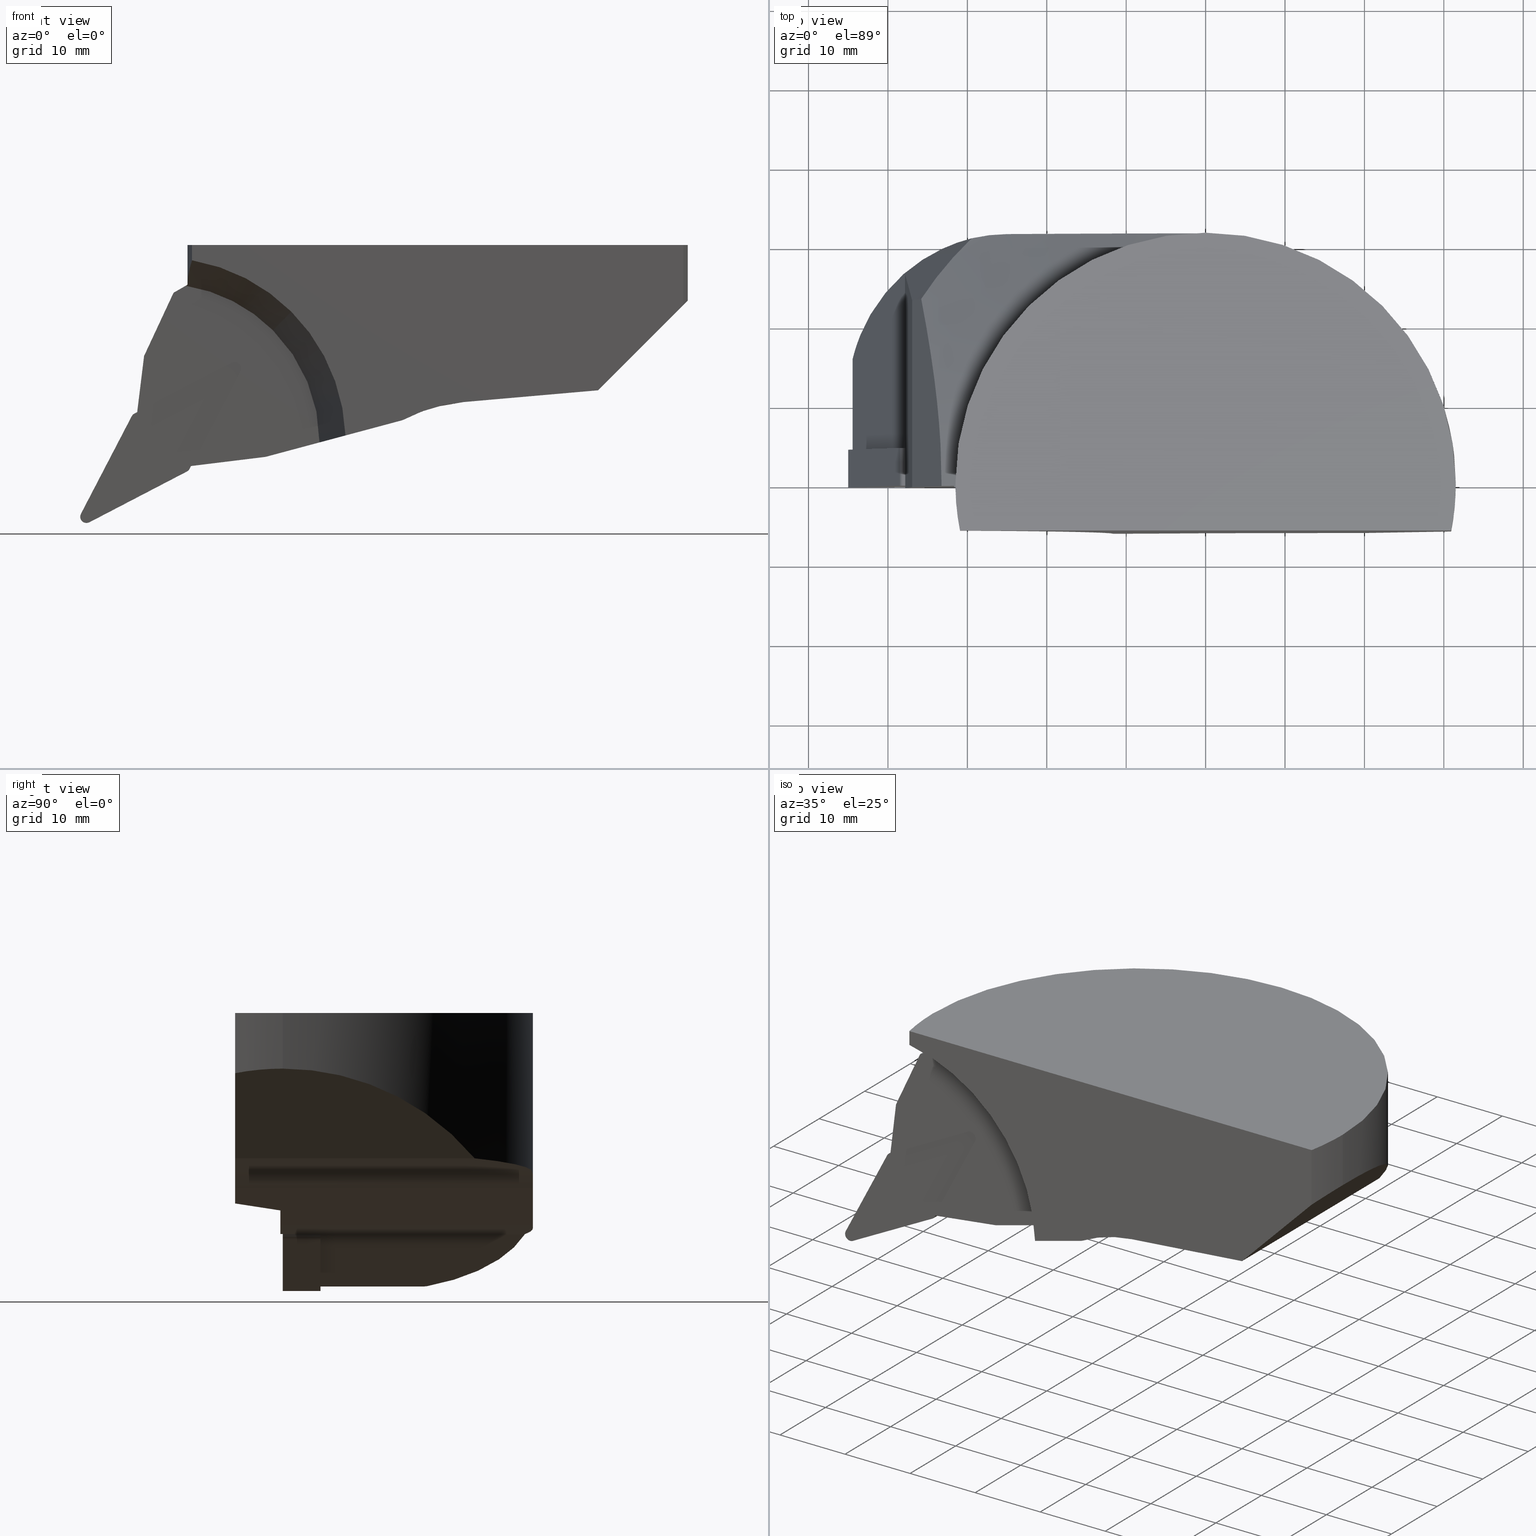
[diagram: canonical four-view strip — front | top / right | iso, engineering-drawing reading convention]
A machine part, canonical four-view strip (front | top / right | iso — engineering-drawing reading convention). The complete STEP part file that produces these views, byte-faithful:
ISO-10303-21;
HEADER;
FILE_DESCRIPTION((''),'1');
FILE_NAME('//Big_tech03/bigt/Translate/11_3D_Field/02_Step_Field/91_\X2\65CB524A30C430FC30EB\X0\/F\X2\30AB30FC30C830EA30C330B8\X0\/F63-SVQBL-45035-16.stp','2012-12-17T07:31:24',(''),(''),'Spatial Interop R18','Kubotek KeyCreator V8.5.1 (14335)',' ');
FILE_SCHEMA(('CONFIG_CONTROL_DESIGN'));
ENDSEC;
DATA;
#1=DESIGN_CONTEXT('',#27,'design');
#2=APPLICATION_PROTOCOL_DEFINITION('INTERNATIONAL STANDARD','config_control_design',1994,#27);
#3=PRODUCT_CATEGORY_RELATIONSHIP('NONE','NONE',#28,#29);
#4=DATE_AND_TIME(#30,#31);
#5=DATE_TIME_ROLE('creation_date');
#6=DATE_TIME_ROLE('classification_date');
#7=PERSON_AND_ORGANIZATION_ROLE('creator');
#8=PERSON_AND_ORGANIZATION_ROLE('design_supplier');
#9=PERSON_AND_ORGANIZATION_ROLE('classification_officer');
#10=PERSON_AND_ORGANIZATION_ROLE('design_owner');
#11=APPROVAL_PERSON_ORGANIZATION(#32,#33,#34);
#12=APPROVAL_DATE_TIME(#4,#33);
#13=CC_DESIGN_APPROVAL(#33,(#35,#36,#37));
#14=CC_DESIGN_DATE_AND_TIME_ASSIGNMENT(#4,#5,(#37));
#15=CC_DESIGN_DATE_AND_TIME_ASSIGNMENT(#4,#6,(#35));
#16=CC_DESIGN_PERSON_AND_ORGANIZATION_ASSIGNMENT(#32,#10,(#38));
#17=CC_DESIGN_PERSON_AND_ORGANIZATION_ASSIGNMENT(#32,#7,(#37));
#18=CC_DESIGN_PERSON_AND_ORGANIZATION_ASSIGNMENT(#32,#7,(#36));
#19=CC_DESIGN_PERSON_AND_ORGANIZATION_ASSIGNMENT(#32,#8,(#36));
#20=CC_DESIGN_SECURITY_CLASSIFICATION(#35,(#36));
#21=CC_DESIGN_PERSON_AND_ORGANIZATION_ASSIGNMENT(#32,#9,(#35));
#22=SHAPE_DEFINITION_REPRESENTATION(#39,#40);
#23= (GEOMETRIC_REPRESENTATION_CONTEXT(3)GLOBAL_UNCERTAINTY_ASSIGNED_CONTEXT((#43))GLOBAL_UNIT_ASSIGNED_CONTEXT((#45,#46,#47))REPRESENTATION_CONTEXT('NONE','WORKSPACE'));
#27=APPLICATION_CONTEXT('CONFIGURATION CONTROLLED 3D DESIGNS OF MECHANICAL PARTS AND ASSEMBLIES');
#28=PRODUCT_CATEGORY('part','NONE');
#29=PRODUCT_RELATED_PRODUCT_CATEGORY('detail',' ',(#38));
#30=CALENDAR_DATE(2012,17,11);
#31=LOCAL_TIME(16,31,24.0,#49);
#32=PERSON_AND_ORGANIZATION(#50,#51);
#33=APPROVAL(#52,'SOLID MODEL');
#34=APPROVAL_ROLE('APPROVED');
#35=SECURITY_CLASSIFICATION('','',#53);
#36=PRODUCT_DEFINITION_FORMATION_WITH_SPECIFIED_SOURCE(' ','NONE',#38,.NOT_KNOWN.);
#37=PRODUCT_DEFINITION('NONE','NONE',#36,#1);
#38=PRODUCT('1','1','PART-1-DESC',(#54));
#39=PRODUCT_DEFINITION_SHAPE('NONE','NONE',#37);
#40=ADVANCED_BREP_SHAPE_REPRESENTATION('1',(#55,#56),#23);
#43=UNCERTAINTY_MEASURE_WITH_UNIT(LENGTH_MEASURE(1.0E-006),#45,'','');
#45= (CONVERSION_BASED_UNIT('MILLIMETRE',#59)LENGTH_UNIT()NAMED_UNIT(#62));
#46= (NAMED_UNIT(#64)PLANE_ANGLE_UNIT()SI_UNIT($,.RADIAN.));
#47= (NAMED_UNIT(#64)SOLID_ANGLE_UNIT()SI_UNIT($,.STERADIAN.));
#49=COORDINATED_UNIVERSAL_TIME_OFFSET(9,0,.AHEAD.);
#50=PERSON('','UNSPECIFIED',$,$,$,$);
#51=ORGANIZATION('UNSPECIFIED','UNSPECIFIED','UNSPECIFIED');
#52=APPROVAL_STATUS('approved');
#53=SECURITY_CLASSIFICATION_LEVEL('unclassified');
#54=MECHANICAL_CONTEXT('',#27,'mechanical');
#55=MANIFOLD_SOLID_BREP('1',#70);
#56=AXIS2_PLACEMENT_3D('',#71,#72,#73);
#59=LENGTH_MEASURE_WITH_UNIT(LENGTH_MEASURE(1.0),#74);
#62=DIMENSIONAL_EXPONENTS(1.0,0.0,0.0,0.0,0.0,0.0,0.0);
#64=DIMENSIONAL_EXPONENTS(0.0,0.0,0.0,0.0,0.0,0.0,0.0);
#70=CLOSED_SHELL('',(#75,#76,#77,#78,#79,#80,#81,#82,#83,#84,#85,#86,#87,#88,#89,#90,#91,#92,#93,#94,#95,#96,#97,#98,#99,#100,#101,#102,#103,#104,#105,#106,#107,#108,#109,#110));
#71=CARTESIAN_POINT('',(0.0,0.0,0.0));
#72=DIRECTION('',(0.0,0.0,1.0));
#73=DIRECTION('',(1.0,0.0,0.0));
#74= (NAMED_UNIT(#62)LENGTH_UNIT()SI_UNIT(.MILLI.,.METRE.));
#75=ADVANCED_FACE('',(#112),#113,.T.);
#76=ADVANCED_FACE('',(#114),#115,.T.);
#77=ADVANCED_FACE('',(#116),#117,.T.);
#78=ADVANCED_FACE('',(#118),#119,.T.);
#79=ADVANCED_FACE('',(#120),#121,.T.);
#80=ADVANCED_FACE('',(#122),#123,.T.);
#81=ADVANCED_FACE('',(#124),#125,.T.);
#82=ADVANCED_FACE('',(#126),#127,.T.);
#83=ADVANCED_FACE('',(#128),#129,.F.);
#84=ADVANCED_FACE('',(#130),#131,.F.);
#85=ADVANCED_FACE('',(#132),#133,.F.);
#86=ADVANCED_FACE('',(#134),#135,.F.);
#87=ADVANCED_FACE('',(#136),#137,.T.);
#88=ADVANCED_FACE('',(#138),#139,.F.);
#89=ADVANCED_FACE('',(#140),#141,.F.);
#90=ADVANCED_FACE('',(#142),#143,.T.);
#91=ADVANCED_FACE('',(#144),#145,.T.);
#92=ADVANCED_FACE('',(#146),#147,.T.);
#93=ADVANCED_FACE('',(#148),#149,.F.);
#94=ADVANCED_FACE('',(#150),#151,.F.);
#95=ADVANCED_FACE('',(#152),#153,.T.);
#96=ADVANCED_FACE('',(#154),#155,.T.);
#97=ADVANCED_FACE('',(#156),#157,.T.);
#98=ADVANCED_FACE('',(#158),#159,.T.);
#99=ADVANCED_FACE('',(#160),#161,.F.);
#100=ADVANCED_FACE('',(#162),#163,.F.);
#101=ADVANCED_FACE('',(#164),#165,.F.);
#102=ADVANCED_FACE('',(#166),#167,.F.);
#103=ADVANCED_FACE('',(#168),#169,.F.);
#104=ADVANCED_FACE('',(#170),#171,.F.);
#105=ADVANCED_FACE('',(#172),#173,.T.);
#106=ADVANCED_FACE('',(#174),#175,.F.);
#107=ADVANCED_FACE('',(#176),#177,.F.);
#108=ADVANCED_FACE('',(#178),#179,.F.);
#109=ADVANCED_FACE('',(#180),#181,.F.);
#110=ADVANCED_FACE('',(#182),#183,.F.);
#112=FACE_OUTER_BOUND('',#184,.T.);
#113=PLANE('',#185);
#114=FACE_OUTER_BOUND('',#186,.T.);
#115=PLANE('',#187);
#116=FACE_OUTER_BOUND('',#188,.T.);
#117=CYLINDRICAL_SURFACE('',#189,0.8);
#118=FACE_OUTER_BOUND('',#190,.T.);
#119=PLANE('',#191);
#120=FACE_OUTER_BOUND('',#192,.T.);
#121=(B_SPLINE_SURFACE(1,2,((#194,#195,#196,#197,#198,#199,#200,#201,#202),(#203,#204,#205,#206,#207,#208,#209,#210,#211)),.UNSPECIFIED.,.F.,.T.,.F.)B_SPLINE_SURFACE_WITH_KNOTS((2,2),(3,2,2,2,3),(-5.71310793192006,8.88178419700125E-016),(0.0,1.30874308776289,2.61748617552578,3.92622926328866,5.23497235105155),.UNSPECIFIED.)RATIONAL_B_SPLINE_SURFACE(((1.0,0.707106781186547,1.0,0.707106781186547,1.0,0.707106781186547,1.0,0.707106781186547,1.0),(1.0,0.707106781186547,1.0,0.707106781186547,1.0,0.707106781186547,1.0,0.707106781186547,1.0)))BOUNDED_SURFACE()REPRESENTATION_ITEM('')GEOMETRIC_REPRESENTATION_ITEM()SURFACE());
#122=FACE_OUTER_BOUND('',#218,.T.);
#123=PLANE('',#219);
#124=FACE_OUTER_BOUND('',#220,.T.);
#125=(B_SPLINE_SURFACE(1,2,((#222,#223,#224,#225,#226,#227,#228,#229,#230),(#231,#232,#233,#234,#235,#236,#237,#238,#239)),.UNSPECIFIED.,.F.,.T.,.F.)B_SPLINE_SURFACE_WITH_KNOTS((2,2),(3,2,2,2,3),(-5.92512169751681,0.0),(0.0,1.2619134082389,2.5238268164778,3.78574022471671,5.04765363295561),.UNSPECIFIED.)RATIONAL_B_SPLINE_SURFACE(((1.0,0.707106781186547,1.0,0.707106781186547,1.0,0.707106781186547,1.0,0.707106781186547,1.0),(1.0,0.707106781186547,1.0,0.707106781186547,1.0,0.707106781186547,1.0,0.707106781186547,1.0)))BOUNDED_SURFACE()REPRESENTATION_ITEM('')GEOMETRIC_REPRESENTATION_ITEM()SURFACE());
#126=FACE_OUTER_BOUND('',#246,.T.);
#127=PLANE('',#247);
#128=FACE_OUTER_BOUND('',#248,.T.);
#129=PLANE('',#249);
#130=FACE_OUTER_BOUND('',#250,.T.);
#131=PLANE('',#251);
#132=FACE_OUTER_BOUND('',#252,.T.);
#133=PLANE('',#253);
#134=FACE_OUTER_BOUND('',#254,.T.);
#135=(B_SPLINE_SURFACE(1,2,((#256,#257,#258,#259,#260,#261,#262,#263,#264),(#265,#266,#267,#268,#269,#270,#271,#272,#273)),.UNSPECIFIED.,.F.,.T.,.F.)B_SPLINE_SURFACE_WITH_KNOTS((2,2),(3,2,2,2,3),(-0.360069829705785,0.0),(0.0,1.30874308026174,2.61748616052347,3.92622924078521,5.23497232104695),.UNSPECIFIED.)RATIONAL_B_SPLINE_SURFACE(((1.0,0.707106781186547,1.0,0.707106781186547,1.0,0.707106781186547,1.0,0.707106781186547,1.0),(1.0,0.707106781186547,1.0,0.707106781186547,1.0,0.707106781186547,1.0,0.707106781186547,1.0)))BOUNDED_SURFACE()REPRESENTATION_ITEM('')GEOMETRIC_REPRESENTATION_ITEM()SURFACE());
#136=FACE_OUTER_BOUND('',#280,.T.);
#137=CYLINDRICAL_SURFACE('',#281,0.399999999999991);
#138=FACE_OUTER_BOUND('',#282,.T.);
#139=PLANE('',#283);
#140=FACE_OUTER_BOUND('',#284,.T.);
#141=PLANE('',#285);
#142=FACE_OUTER_BOUND('',#286,.T.);
#143=CONICAL_SURFACE('',#287,33.095961123551,1.0471975488034);
#144=FACE_OUTER_BOUND('',#288,.T.);
#145=CYLINDRICAL_SURFACE('',#289,31.5);
#146=FACE_OUTER_BOUND('',#290,.T.);
#147=CYLINDRICAL_SURFACE('',#291,31.5);
#148=FACE_OUTER_BOUND('',#292,.T.);
#149=CONICAL_SURFACE('',#293,20.470167188113,0.523598774401705);
#150=FACE_OUTER_BOUND('',#294,.T.);
#151=CONICAL_SURFACE('',#295,20.4687506881275,0.5235987744017);
#152=FACE_OUTER_BOUND('',#296,.T.);
#153=CYLINDRICAL_SURFACE('',#297,31.5);
#154=FACE_OUTER_BOUND('',#298,.T.);
#155=CONICAL_SURFACE('',#299,31.7500647921819,1.04719754880339);
#156=FACE_OUTER_BOUND('',#300,.T.);
#157=CYLINDRICAL_SURFACE('',#301,0.399999999999991);
#158=FACE_OUTER_BOUND('',#302,.T.);
#159=CYLINDRICAL_SURFACE('',#303,20.0);
#160=FACE_OUTER_BOUND('',#304,.T.);
#161=PLANE('',#305);
#162=FACE_OUTER_BOUND('',#306,.T.);
#163=PLANE('',#307);
#164=FACE_OUTER_BOUND('',#308,.T.);
#165=PLANE('',#309);
#166=FACE_OUTER_BOUND('',#310,.T.);
#167=PLANE('',#311);
#168=FACE_OUTER_BOUND('',#312,.T.);
#169=PLANE('',#313);
#170=FACE_OUTER_BOUND('',#314,.T.);
#171=PLANE('',#315);
#172=FACE_OUTER_BOUND('',#316,.T.);
#173=CONICAL_SURFACE('',#317,43.2868102624016,0.349065849601133);
#174=FACE_OUTER_BOUND('',#318,.T.);
#175=PLANE('',#319);
#176=FACE_OUTER_BOUND('',#320,.T.);
#177=CYLINDRICAL_SURFACE('',#321,20.0);
#178=FACE_OUTER_BOUND('',#322,.T.);
#179=PLANE('',#323);
#180=FACE_OUTER_BOUND('',#324,.T.);
#181=PLANE('',#325);
#182=FACE_OUTER_BOUND('',#326,.T.);
#183=PLANE('',#327);
#184=EDGE_LOOP('',(#328,#329,#330,#331));
#185=AXIS2_PLACEMENT_3D('',#332,#333,#334);
#186=EDGE_LOOP('',(#335,#336,#337,#338));
#187=AXIS2_PLACEMENT_3D('',#339,#340,#341);
#188=EDGE_LOOP('',(#342,#343,#344,#345));
#189=AXIS2_PLACEMENT_3D('',#346,#347,#348);
#190=EDGE_LOOP('',(#349,#350,#351,#352));
#191=AXIS2_PLACEMENT_3D('',#353,#354,#355);
#192=EDGE_LOOP('',(#356,#357,#358,#359));
#194=CARTESIAN_POINT('',(-43.5936972062056,8.88178419700125E-015,-33.5945348649653));
#195=CARTESIAN_POINT('',(-44.1594086258847,8.88178419700125E-015,-33.0288754359404));
#196=CARTESIAN_POINT('',(-44.7485229298336,8.88178419700125E-015,-33.6180438863182));
#197=CARTESIAN_POINT('',(-45.3376372337825,8.88178419700125E-015,-34.2072123366959));
#198=CARTESIAN_POINT('',(-44.7719258141035,8.88178419700125E-015,-34.7728717657208));
#199=CARTESIAN_POINT('',(-44.2062143944244,8.88178419700125E-015,-35.3385311947457));
#200=CARTESIAN_POINT('',(-43.6171000904755,8.88178419700125E-015,-34.7493627443679));
#201=CARTESIAN_POINT('',(-43.0279857865266,8.88178419700125E-015,-34.1601942939902));
#202=CARTESIAN_POINT('',(-43.5936972062056,8.88178419700125E-015,-33.5945348649653));
#203=CARTESIAN_POINT('',(-43.5936972062056,4.76000000000001,-33.5945348649653));
#204=CARTESIAN_POINT('',(-44.1594086258847,4.76000000000001,-33.0288754359404));
#205=CARTESIAN_POINT('',(-44.7485229298336,4.76000000000001,-33.6180438863182));
#206=CARTESIAN_POINT('',(-45.3376372337825,4.76000000000001,-34.2072123366959));
#207=CARTESIAN_POINT('',(-44.7719258141035,4.76000000000001,-34.7728717657208));
#208=CARTESIAN_POINT('',(-44.2062143944244,4.76000000000001,-35.3385311947457));
#209=CARTESIAN_POINT('',(-43.6171000904755,4.76000000000001,-34.7493627443679));
#210=CARTESIAN_POINT('',(-43.0279857865266,4.76000000000001,-34.1601942939902));
#211=CARTESIAN_POINT('',(-43.5936972062056,4.76000000000001,-33.5945348649653));
#218=EDGE_LOOP('',(#360,#361,#362,#363));
#219=AXIS2_PLACEMENT_3D('',#364,#365,#366);
#220=EDGE_LOOP('',(#367,#368,#369,#370));
#222=CARTESIAN_POINT('',(-37.2403121604095,8.88178419700125E-015,-22.5052310851508));
#223=CARTESIAN_POINT('',(-36.6746527330056,8.88178419700125E-015,-21.939519667093));
#224=CARTESIAN_POINT('',(-37.2427394523891,8.88178419700125E-015,-21.3714851566612));
#225=CARTESIAN_POINT('',(-37.8108261717726,8.88178419700125E-015,-20.8034506462293));
#226=CARTESIAN_POINT('',(-38.3764855991764,8.88178419700125E-015,-21.3691620642871));
#227=CARTESIAN_POINT('',(-38.9421450265803,8.88178419700125E-015,-21.934873482345));
#228=CARTESIAN_POINT('',(-38.3740583071968,8.88178419700125E-015,-22.5029079927768));
#229=CARTESIAN_POINT('',(-37.8059715878133,8.88178419700125E-015,-23.0709425032087));
#230=CARTESIAN_POINT('',(-37.2403121604095,8.88178419700125E-015,-22.5052310851508));
#231=CARTESIAN_POINT('',(-37.2403121604095,4.76000000000001,-22.5052310851508));
#232=CARTESIAN_POINT('',(-36.6746527330056,4.76000000000001,-21.939519667093));
#233=CARTESIAN_POINT('',(-37.2427394523891,4.76000000000001,-21.3714851566612));
#234=CARTESIAN_POINT('',(-37.8108261717726,4.76000000000001,-20.8034506462293));
#235=CARTESIAN_POINT('',(-38.3764855991764,4.76000000000001,-21.3691620642871));
#236=CARTESIAN_POINT('',(-38.9421450265803,4.76000000000001,-21.934873482345));
#237=CARTESIAN_POINT('',(-38.3740583071968,4.76000000000001,-22.5029079927768));
#238=CARTESIAN_POINT('',(-37.8059715878133,4.76000000000001,-23.0709425032087));
#239=CARTESIAN_POINT('',(-37.2403121604095,4.76000000000001,-22.5052310851508));
#246=EDGE_LOOP('',(#371,#372,#373,#374,#375,#376,#377,#378,#379,#380,#381,#382,#383));
#247=AXIS2_PLACEMENT_3D('',#384,#385,#386);
#248=EDGE_LOOP('',(#387,#388,#389,#390,#391,#392,#393,#394,#395,#396));
#249=AXIS2_PLACEMENT_3D('',#397,#398,#399);
#250=EDGE_LOOP('',(#400,#401,#402,#403));
#251=AXIS2_PLACEMENT_3D('',#404,#405,#406);
#252=EDGE_LOOP('',(#407,#408,#409,#410));
#253=AXIS2_PLACEMENT_3D('',#411,#412,#413);
#254=EDGE_LOOP('',(#414,#415,#416,#417));
#256=CARTESIAN_POINT('',(-24.973363734934,8.88178419700125E-015,-14.9724899693497));
#257=CARTESIAN_POINT('',(-24.4076523184974,8.88178419700125E-015,-15.5381493951325));
#258=CARTESIAN_POINT('',(-24.9967666190698,8.88178419700125E-015,-16.1273178421334));
#259=CARTESIAN_POINT('',(-25.5858809196421,8.88178419700125E-015,-16.7164862891342));
#260=CARTESIAN_POINT('',(-26.1515923360787,8.88178419700125E-015,-16.1508268633515));
#261=CARTESIAN_POINT('',(-26.7173037525153,8.88178419700125E-015,-15.5851674375687));
#262=CARTESIAN_POINT('',(-26.128189451943,8.88178419700125E-015,-14.9959989905678));
#263=CARTESIAN_POINT('',(-25.5390751513706,8.88178419700125E-015,-14.406830543567));
#264=CARTESIAN_POINT('',(-24.973363734934,8.88178419700125E-015,-14.9724899693497));
#265=CARTESIAN_POINT('',(-24.973363734934,-0.299999999999991,-14.9724899693497));
#266=CARTESIAN_POINT('',(-24.4076523184974,-0.299999999999991,-15.5381493951325));
#267=CARTESIAN_POINT('',(-24.9967666190698,-0.299999999999991,-16.1273178421334));
#268=CARTESIAN_POINT('',(-25.5858809196421,-0.299999999999991,-16.7164862891342));
#269=CARTESIAN_POINT('',(-26.1515923360787,-0.299999999999991,-16.1508268633515));
#270=CARTESIAN_POINT('',(-26.7173037525153,-0.299999999999991,-15.5851674375687));
#271=CARTESIAN_POINT('',(-26.128189451943,-0.299999999999991,-14.9959989905678));
#272=CARTESIAN_POINT('',(-25.5390751513706,-0.299999999999991,-14.406830543567));
#273=CARTESIAN_POINT('',(-24.973363734934,-0.299999999999991,-14.9724899693497));
#280=EDGE_LOOP('',(#418,#419,#420,#421));
#281=AXIS2_PLACEMENT_3D('',#422,#423,#424);
#282=EDGE_LOOP('',(#425,#426,#427,#428,#429));
#283=AXIS2_PLACEMENT_3D('',#430,#431,#432);
#284=EDGE_LOOP('',(#433,#434,#435,#436,#437,#438,#439));
#285=AXIS2_PLACEMENT_3D('',#440,#441,#442);
#286=EDGE_LOOP('',(#443,#444,#445,#446,#447,#448));
#287=AXIS2_PLACEMENT_3D('',#449,#450,#451);
#288=EDGE_LOOP('',(#452,#453,#454,#455));
#289=AXIS2_PLACEMENT_3D('',#456,#457,#458);
#290=EDGE_LOOP('',(#459,#460,#461,#462,#463,#464,#465,#466));
#291=AXIS2_PLACEMENT_3D('',#467,#468,#469);
#292=EDGE_LOOP('',(#470,#471,#472,#473,#474));
#293=AXIS2_PLACEMENT_3D('',#475,#476,#477);
#294=EDGE_LOOP('',(#478,#479,#480,#481));
#295=AXIS2_PLACEMENT_3D('',#482,#483,#484);
#296=EDGE_LOOP('',(#485,#486,#487,#488,#489));
#297=AXIS2_PLACEMENT_3D('',#490,#491,#492);
#298=EDGE_LOOP('',(#493,#494,#495,#496,#497));
#299=AXIS2_PLACEMENT_3D('',#498,#499,#500);
#300=EDGE_LOOP('',(#501,#502,#503,#504));
#301=AXIS2_PLACEMENT_3D('',#505,#506,#507);
#302=EDGE_LOOP('',(#508,#509,#510,#511,#512,#513,#514,#515));
#303=AXIS2_PLACEMENT_3D('',#516,#517,#518);
#304=EDGE_LOOP('',(#519,#520,#521,#522,#523,#524,#525,#526,#527,#528));
#305=AXIS2_PLACEMENT_3D('',#529,#530,#531);
#306=EDGE_LOOP('',(#532,#533,#534,#535,#536,#537));
#307=AXIS2_PLACEMENT_3D('',#538,#539,#540);
#308=EDGE_LOOP('',(#541,#542,#543,#544,#545,#546,#547,#548,#549));
#309=AXIS2_PLACEMENT_3D('',#550,#551,#552);
#310=EDGE_LOOP('',(#553,#554,#555,#556,#557,#558,#559,#560));
#311=AXIS2_PLACEMENT_3D('',#561,#562,#563);
#312=EDGE_LOOP('',(#564,#565,#566,#567,#568,#569));
#313=AXIS2_PLACEMENT_3D('',#570,#571,#572);
#314=EDGE_LOOP('',(#573,#574,#575,#576,#577));
#315=AXIS2_PLACEMENT_3D('',#578,#579,#580);
#316=EDGE_LOOP('',(#581,#582,#583,#584,#585));
#317=AXIS2_PLACEMENT_3D('',#586,#587,#588);
#318=EDGE_LOOP('',(#589,#590,#591,#592));
#319=AXIS2_PLACEMENT_3D('',#593,#594,#595);
#320=EDGE_LOOP('',(#596,#597,#598,#599,#600));
#321=AXIS2_PLACEMENT_3D('',#601,#602,#603);
#322=EDGE_LOOP('',(#604,#605,#606,#607));
#323=AXIS2_PLACEMENT_3D('',#608,#609,#610);
#324=EDGE_LOOP('',(#611,#612,#613,#614));
#325=AXIS2_PLACEMENT_3D('',#615,#616,#617);
#326=EDGE_LOOP('',(#618,#619,#620,#621));
#327=AXIS2_PLACEMENT_3D('',#622,#623,#624);
#328=ORIENTED_EDGE('',*,*,#625,.F.);
#329=ORIENTED_EDGE('',*,*,#626,.T.);
#330=ORIENTED_EDGE('',*,*,#627,.T.);
#331=ORIENTED_EDGE('',*,*,#628,.T.);
#332=CARTESIAN_POINT('',(-38.1809475447485,4.76000000000001,-21.2257825474143));
#333=DIRECTION('',(-0.46178937415957,0.0,0.886989613193589));
#334=DIRECTION('',(0.886989613193589,0.0,0.46178937415957));
#335=ORIENTED_EDGE('',*,*,#629,.F.);
#336=ORIENTED_EDGE('',*,*,#630,.T.);
#337=ORIENTED_EDGE('',*,*,#631,.F.);
#338=ORIENTED_EDGE('',*,*,#632,.T.);
#339=CARTESIAN_POINT('',(-31.0417891643377,4.76000000000001,-27.8278142582945));
#340=DIRECTION('',(0.887032051366569,0.0,-0.461707851187758));
#341=DIRECTION('',(-0.461707851187758,0.0,-0.887032051366569));
#342=ORIENTED_EDGE('',*,*,#633,.T.);
#343=ORIENTED_EDGE('',*,*,#634,.F.);
#344=ORIENTED_EDGE('',*,*,#635,.T.);
#345=ORIENTED_EDGE('',*,*,#631,.T.);
#346=CARTESIAN_POINT('',(-31.9346248831365,4.76000000000001,-27.8104307531192));
#347=DIRECTION('',(-0.0,1.0,-0.0));
#348=DIRECTION('',(0.461789374159572,0.0,-0.886989613193588));
#349=ORIENTED_EDGE('',*,*,#636,.T.);
#350=ORIENTED_EDGE('',*,*,#637,.F.);
#351=ORIENTED_EDGE('',*,*,#638,.T.);
#352=ORIENTED_EDGE('',*,*,#634,.T.);
#353=CARTESIAN_POINT('',(-31.5651933838088,4.76000000000001,-28.520022443674));
#354=DIRECTION('',(0.461789374011936,0.0,-0.886989613270451));
#355=DIRECTION('',(-0.886989613270451,0.0,-0.461789374011936));
#356=ORIENTED_EDGE('',*,*,#639,.T.);
#357=ORIENTED_EDGE('',*,*,#640,.F.);
#358=ORIENTED_EDGE('',*,*,#641,.T.);
#359=ORIENTED_EDGE('',*,*,#637,.T.);
#360=ORIENTED_EDGE('',*,*,#642,.T.);
#361=ORIENTED_EDGE('',*,*,#643,.F.);
#362=ORIENTED_EDGE('',*,*,#644,.T.);
#363=ORIENTED_EDGE('',*,*,#640,.T.);
#364=CARTESIAN_POINT('',(-44.9040805055676,4.76000000000001,-33.8300875970279));
#365=DIRECTION('',(-0.887032051289717,0.0,0.461707851335405));
#366=DIRECTION('',(0.461707851335405,0.0,0.887032051289717));
#367=ORIENTED_EDGE('',*,*,#645,.T.);
#368=ORIENTED_EDGE('',*,*,#627,.F.);
#369=ORIENTED_EDGE('',*,*,#646,.T.);
#370=ORIENTED_EDGE('',*,*,#643,.T.);
#371=ORIENTED_EDGE('',*,*,#647,.F.);
#372=ORIENTED_EDGE('',*,*,#632,.F.);
#373=ORIENTED_EDGE('',*,*,#635,.F.);
#374=ORIENTED_EDGE('',*,*,#638,.F.);
#375=ORIENTED_EDGE('',*,*,#641,.F.);
#376=ORIENTED_EDGE('',*,*,#644,.F.);
#377=ORIENTED_EDGE('',*,*,#646,.F.);
#378=ORIENTED_EDGE('',*,*,#626,.F.);
#379=ORIENTED_EDGE('',*,*,#648,.F.);
#380=ORIENTED_EDGE('',*,*,#649,.F.);
#381=ORIENTED_EDGE('',*,*,#650,.F.);
#382=ORIENTED_EDGE('',*,*,#651,.F.);
#383=ORIENTED_EDGE('',*,*,#652,.F.);
#384=CARTESIAN_POINT('',(-39.5931359111677,4.76000000000001,-29.5933556644697));
#385=DIRECTION('',(-2.30813178385834E-030,1.0,-1.29522369238585E-032));
#386=DIRECTION('',(0.0,1.29522369238585E-032,1.0));
#387=ORIENTED_EDGE('',*,*,#628,.F.);
#388=ORIENTED_EDGE('',*,*,#645,.F.);
#389=ORIENTED_EDGE('',*,*,#642,.F.);
#390=ORIENTED_EDGE('',*,*,#639,.F.);
#391=ORIENTED_EDGE('',*,*,#636,.F.);
#392=ORIENTED_EDGE('',*,*,#633,.F.);
#393=ORIENTED_EDGE('',*,*,#630,.F.);
#394=ORIENTED_EDGE('',*,*,#653,.F.);
#395=ORIENTED_EDGE('',*,*,#654,.F.);
#396=ORIENTED_EDGE('',*,*,#655,.F.);
#397=CARTESIAN_POINT('',(-39.5931359111677,8.32667268468867E-015,-29.5933556644697));
#398=DIRECTION('',(-2.14368262878046E-030,1.0,2.52322740034708E-032));
#399=DIRECTION('',(0.0,-2.52322740034708E-032,1.0));
#400=ORIENTED_EDGE('',*,*,#653,.T.);
#401=ORIENTED_EDGE('',*,*,#656,.F.);
#402=ORIENTED_EDGE('',*,*,#657,.F.);
#403=ORIENTED_EDGE('',*,*,#658,.T.);
#404=CARTESIAN_POINT('',(-31.2249992421047,-0.299999999999991,-28.1797970341875));
#405=DIRECTION('',(0.887032051366569,0.0,-0.461707851187757));
#406=DIRECTION('',(-0.461707851187757,0.0,-0.887032051366569));
#407=ORIENTED_EDGE('',*,*,#655,.T.);
#408=ORIENTED_EDGE('',*,*,#659,.F.);
#409=ORIENTED_EDGE('',*,*,#660,.F.);
#410=ORIENTED_EDGE('',*,*,#661,.F.);
#411=CARTESIAN_POINT('',(-25.916160046606,-0.299999999999991,-14.8404219313242));
#412=DIRECTION('',(-0.46178937415957,0.0,0.886989613193589));
#413=DIRECTION('',(0.886989613193589,0.0,0.46178937415957));
#414=ORIENTED_EDGE('',*,*,#654,.T.);
#415=ORIENTED_EDGE('',*,*,#658,.F.);
#416=ORIENTED_EDGE('',*,*,#662,.F.);
#417=ORIENTED_EDGE('',*,*,#659,.T.);
#418=ORIENTED_EDGE('',*,*,#650,.T.);
#419=ORIENTED_EDGE('',*,*,#663,.F.);
#420=ORIENTED_EDGE('',*,*,#664,.F.);
#421=ORIENTED_EDGE('',*,*,#665,.F.);
#422=CARTESIAN_POINT('',(-44.0434634493822,3.08952744785386,-34.0434638638515));
#423=DIRECTION('',(-0.0,1.0,-0.0));
#424=DIRECTION('',(-0.152130250386204,0.0,0.988360453942503));
#425=ORIENTED_EDGE('',*,*,#649,.T.);
#426=ORIENTED_EDGE('',*,*,#666,.F.);
#427=ORIENTED_EDGE('',*,*,#667,.T.);
#428=ORIENTED_EDGE('',*,*,#668,.T.);
#429=ORIENTED_EDGE('',*,*,#663,.T.);
#430=CARTESIAN_POINT('',(-41.1287304168651,13.1974610956479,-27.5780415754134));
#431=DIRECTION('',(0.887010833178223,0.0,-0.461748613235031));
#432=DIRECTION('',(-0.461748613235031,0.0,-0.887010833178223));
#433=ORIENTED_EDGE('',*,*,#648,.T.);
#434=ORIENTED_EDGE('',*,*,#625,.T.);
#435=ORIENTED_EDGE('',*,*,#661,.T.);
#436=ORIENTED_EDGE('',*,*,#669,.F.);
#437=ORIENTED_EDGE('',*,*,#670,.F.);
#438=ORIENTED_EDGE('',*,*,#671,.T.);
#439=ORIENTED_EDGE('',*,*,#666,.T.);
#440=CARTESIAN_POINT('',(-37.4091489782207,13.1976695704981,-17.6320378761029));
#441=DIRECTION('',(0.992546151641322,0.0,-0.121869343405149));
#442=DIRECTION('',(-0.121869343405149,0.0,-0.992546151641322));
#443=ORIENTED_EDGE('',*,*,#672,.F.);
#444=ORIENTED_EDGE('',*,*,#673,.F.);
#445=ORIENTED_EDGE('',*,*,#674,.T.);
#446=ORIENTED_EDGE('',*,*,#675,.F.);
#447=ORIENTED_EDGE('',*,*,#676,.T.);
#448=ORIENTED_EDGE('',*,*,#677,.F.);
#449=CARTESIAN_POINT('',(5.77315972805081E-014,7.32747196252603E-014,-5.92142857142859));
#450=DIRECTION('',(0.0,-0.0,-1.0));
#451=DIRECTION('',(0.707106781186546,0.707106781186549,0.0));
#452=ORIENTED_EDGE('',*,*,#678,.T.);
#453=ORIENTED_EDGE('',*,*,#679,.F.);
#454=ORIENTED_EDGE('',*,*,#680,.T.);
#455=ORIENTED_EDGE('',*,*,#681,.F.);
#456=CARTESIAN_POINT('',(1.11022302462516E-014,8.88178419700125E-015,-1.51534156157351));
#457=DIRECTION('',(-0.0,-0.0,-1.0));
#458=DIRECTION('',(-0.0956770201687619,-0.9954124310112,0.0));
#459=ORIENTED_EDGE('',*,*,#682,.F.);
#460=ORIENTED_EDGE('',*,*,#683,.F.);
#461=ORIENTED_EDGE('',*,*,#678,.F.);
#462=ORIENTED_EDGE('',*,*,#684,.F.);
#463=ORIENTED_EDGE('',*,*,#685,.T.);
#464=ORIENTED_EDGE('',*,*,#686,.T.);
#465=ORIENTED_EDGE('',*,*,#687,.T.);
#466=ORIENTED_EDGE('',*,*,#673,.T.);
#467=CARTESIAN_POINT('',(1.22124532708767E-014,4.44089209850063E-015,-4.06702151976236));
#468=DIRECTION('',(-0.0,-0.0,-1.0));
#469=DIRECTION('',(0.0,-1.0,0.0));
#470=ORIENTED_EDGE('',*,*,#688,.F.);
#471=ORIENTED_EDGE('',*,*,#689,.T.);
#472=ORIENTED_EDGE('',*,*,#690,.T.);
#473=ORIENTED_EDGE('',*,*,#691,.T.);
#474=ORIENTED_EDGE('',*,*,#692,.T.);
#475=CARTESIAN_POINT('',(-34.8726513504567,-1.11435344653061,-24.8726513504565));
#476=DIRECTION('',(-0.0,-1.0,0.0));
#477=DIRECTION('',(-0.890650702595518,0.0,0.454688163433039));
#478=ORIENTED_EDGE('',*,*,#688,.T.);
#479=ORIENTED_EDGE('',*,*,#693,.T.);
#480=ORIENTED_EDGE('',*,*,#694,.T.);
#481=ORIENTED_EDGE('',*,*,#695,.T.);
#482=CARTESIAN_POINT('',(-34.8726513504568,-1.11189999657983,-24.8726513504565));
#483=DIRECTION('',(-0.0,-1.0,0.0));
#484=DIRECTION('',(-0.383048352957736,0.0,0.923728293004152));
#485=ORIENTED_EDGE('',*,*,#682,.T.);
#486=ORIENTED_EDGE('',*,*,#696,.T.);
#487=ORIENTED_EDGE('',*,*,#690,.F.);
#488=ORIENTED_EDGE('',*,*,#697,.T.);
#489=ORIENTED_EDGE('',*,*,#698,.F.);
#490=CARTESIAN_POINT('',(9.99200722162641E-015,4.44089209850063E-015,-1.00009482921788));
#491=DIRECTION('',(-0.0,-0.0,-1.0));
#492=DIRECTION('',(-0.0956770201687619,0.9954124310112,0.0));
#493=ORIENTED_EDGE('',*,*,#672,.T.);
#494=ORIENTED_EDGE('',*,*,#699,.F.);
#495=ORIENTED_EDGE('',*,*,#700,.F.);
#496=ORIENTED_EDGE('',*,*,#691,.F.);
#497=ORIENTED_EDGE('',*,*,#696,.F.);
#498=CARTESIAN_POINT('',(2.22044604925031E-014,2.4980018054066E-014,-5.14437495791674));
#499=DIRECTION('',(-0.0,0.0,-1.0));
#500=DIRECTION('',(-0.00909748246393791,0.999958617050135,0.0));
#501=ORIENTED_EDGE('',*,*,#651,.T.);
#502=ORIENTED_EDGE('',*,*,#665,.T.);
#503=ORIENTED_EDGE('',*,*,#701,.F.);
#504=ORIENTED_EDGE('',*,*,#702,.F.);
#505=CARTESIAN_POINT('',(-44.0434634493822,3.39371783980151,-34.0434638638515));
#506=DIRECTION('',(-0.0,1.0,-0.0));
#507=DIRECTION('',(-0.988385627483606,0.0,0.151966612727395));
#508=ORIENTED_EDGE('',*,*,#701,.T.);
#509=ORIENTED_EDGE('',*,*,#664,.T.);
#510=ORIENTED_EDGE('',*,*,#668,.F.);
#511=ORIENTED_EDGE('',*,*,#703,.T.);
#512=ORIENTED_EDGE('',*,*,#675,.T.);
#513=ORIENTED_EDGE('',*,*,#704,.T.);
#514=ORIENTED_EDGE('',*,*,#705,.F.);
#515=ORIENTED_EDGE('',*,*,#706,.F.);
#516=CARTESIAN_POINT('',(-25.0,11.5,-29.5685195220243));
#517=DIRECTION('',(0.0,-0.0,1.0));
#518=DIRECTION('',(-0.785584711557176,-0.618754119960125,0.0));
#519=ORIENTED_EDGE('',*,*,#657,.T.);
#520=ORIENTED_EDGE('',*,*,#707,.T.);
#521=ORIENTED_EDGE('',*,*,#708,.T.);
#522=ORIENTED_EDGE('',*,*,#693,.F.);
#523=ORIENTED_EDGE('',*,*,#692,.F.);
#524=ORIENTED_EDGE('',*,*,#700,.T.);
#525=ORIENTED_EDGE('',*,*,#709,.T.);
#526=ORIENTED_EDGE('',*,*,#669,.T.);
#527=ORIENTED_EDGE('',*,*,#660,.T.);
#528=ORIENTED_EDGE('',*,*,#662,.T.);
#529=CARTESIAN_POINT('',(-29.6580605173321,-0.299999999999991,-19.7836365885103));
#530=DIRECTION('',(0.0,1.0,0.0));
#531=DIRECTION('',(0.0,0.0,1.0));
#532=ORIENTED_EDGE('',*,*,#710,.T.);
#533=ORIENTED_EDGE('',*,*,#711,.T.);
#534=ORIENTED_EDGE('',*,*,#694,.F.);
#535=ORIENTED_EDGE('',*,*,#708,.F.);
#536=ORIENTED_EDGE('',*,*,#712,.T.);
#537=ORIENTED_EDGE('',*,*,#713,.T.);
#538=CARTESIAN_POINT('',(-13.0388644066997,12.7483299976053,-24.3654871677734));
#539=DIRECTION('',(-0.258819045102522,0.0,0.965925826289068));
#540=DIRECTION('',(0.965925826289068,0.0,0.258819045102522));
#541=ORIENTED_EDGE('',*,*,#695,.F.);
#542=ORIENTED_EDGE('',*,*,#711,.F.);
#543=ORIENTED_EDGE('',*,*,#714,.F.);
#544=ORIENTED_EDGE('',*,*,#715,.F.);
#545=ORIENTED_EDGE('',*,*,#716,.F.);
#546=ORIENTED_EDGE('',*,*,#680,.F.);
#547=ORIENTED_EDGE('',*,*,#717,.F.);
#548=ORIENTED_EDGE('',*,*,#697,.F.);
#549=ORIENTED_EDGE('',*,*,#689,.F.);
#550=CARTESIAN_POINT('',(-5.42050848650888E-010,-6.00000000000001,-11.9898223481939));
#551=DIRECTION('',(0.0,1.0,0.0));
#552=DIRECTION('',(0.0,0.0,1.0));
#553=ORIENTED_EDGE('',*,*,#647,.T.);
#554=ORIENTED_EDGE('',*,*,#718,.T.);
#555=ORIENTED_EDGE('',*,*,#705,.T.);
#556=ORIENTED_EDGE('',*,*,#719,.T.);
#557=ORIENTED_EDGE('',*,*,#712,.F.);
#558=ORIENTED_EDGE('',*,*,#707,.F.);
#559=ORIENTED_EDGE('',*,*,#656,.T.);
#560=ORIENTED_EDGE('',*,*,#629,.T.);
#561=CARTESIAN_POINT('',(-26.479900455739,15.6,-27.2676847563213));
#562=DIRECTION('',(-0.121869343405148,0.0,0.992546151641322));
#563=DIRECTION('',(0.992546151641322,0.0,0.121869343405148));
#564=ORIENTED_EDGE('',*,*,#713,.F.);
#565=ORIENTED_EDGE('',*,*,#719,.F.);
#566=ORIENTED_EDGE('',*,*,#704,.F.);
#567=ORIENTED_EDGE('',*,*,#674,.F.);
#568=ORIENTED_EDGE('',*,*,#687,.F.);
#569=ORIENTED_EDGE('',*,*,#720,.F.);
#570=CARTESIAN_POINT('',(-12.5,31.5,-16.0379879143416));
#571=DIRECTION('',(0.0,-1.0,0.0));
#572=DIRECTION('',(0.0,0.0,-1.0));
#573=ORIENTED_EDGE('',*,*,#709,.F.);
#574=ORIENTED_EDGE('',*,*,#699,.T.);
#575=ORIENTED_EDGE('',*,*,#677,.T.);
#576=ORIENTED_EDGE('',*,*,#721,.T.);
#577=ORIENTED_EDGE('',*,*,#670,.T.);
#578=CARTESIAN_POINT('',(-35.1010477861277,11.5383422247912,-9.98213944853223));
#579=DIRECTION('',(0.90630778703665,-9.90849301156822E-017,-0.422618261740699));
#580=DIRECTION('',(-0.422618261740699,0.0,-0.90630778703665));
#581=ORIENTED_EDGE('',*,*,#721,.F.);
#582=ORIENTED_EDGE('',*,*,#676,.F.);
#583=ORIENTED_EDGE('',*,*,#703,.F.);
#584=ORIENTED_EDGE('',*,*,#667,.F.);
#585=ORIENTED_EDGE('',*,*,#671,.F.);
#586=CARTESIAN_POINT('',(8.88178419700125E-015,-2.44249065417534E-014,-12.9519868772752));
#587=DIRECTION('',(0.0,-0.0,-1.0));
#588=DIRECTION('',(0.63353479897585,0.773714196901304,0.0));
#589=ORIENTED_EDGE('',*,*,#679,.T.);
#590=ORIENTED_EDGE('',*,*,#683,.T.);
#591=ORIENTED_EDGE('',*,*,#698,.T.);
#592=ORIENTED_EDGE('',*,*,#717,.T.);
#593=CARTESIAN_POINT('',(0.0,12.75,0.0));
#594=DIRECTION('',(0.0,0.0,-1.0));
#595=DIRECTION('',(-1.0,0.0,0.0));
#596=ORIENTED_EDGE('',*,*,#722,.T.);
#597=ORIENTED_EDGE('',*,*,#714,.T.);
#598=ORIENTED_EDGE('',*,*,#710,.F.);
#599=ORIENTED_EDGE('',*,*,#720,.T.);
#600=ORIENTED_EDGE('',*,*,#686,.F.);
#601=CARTESIAN_POINT('',(5.00000000000002,24.0000194638791,-39.7));
#602=DIRECTION('',(-0.0,-1.0,-0.0));
#603=DIRECTION('',(-0.958611886636189,0.0,-0.284716088059327));
#604=ORIENTED_EDGE('',*,*,#684,.T.);
#605=ORIENTED_EDGE('',*,*,#681,.T.);
#606=ORIENTED_EDGE('',*,*,#716,.T.);
#607=ORIENTED_EDGE('',*,*,#723,.T.);
#608=CARTESIAN_POINT('',(25.8534106077438,9.08236707319101,-12.6465893922562));
#609=DIRECTION('',(-0.707106781186548,-1.3012649565089E-016,0.707106781186547));
#610=DIRECTION('',(0.707106781186547,0.0,0.707106781186548));
#611=ORIENTED_EDGE('',*,*,#722,.F.);
#612=ORIENTED_EDGE('',*,*,#685,.F.);
#613=ORIENTED_EDGE('',*,*,#723,.F.);
#614=ORIENTED_EDGE('',*,*,#715,.T.);
#615=CARTESIAN_POINT('',(11.7318531802672,12.6655888746,-19.0346424113388));
#616=DIRECTION('',(-0.0871557427476571,0.0,0.996194698091746));
#617=DIRECTION('',(0.996194698091746,0.0,0.0871557427476571));
#618=ORIENTED_EDGE('',*,*,#652,.T.);
#619=ORIENTED_EDGE('',*,*,#702,.T.);
#620=ORIENTED_EDGE('',*,*,#706,.T.);
#621=ORIENTED_EDGE('',*,*,#718,.F.);
#622=CARTESIAN_POINT('',(-37.5782542910933,15.0913633650479,-31.1288417798675));
#623=DIRECTION('',(-0.461748613235034,7.32759435051832E-016,0.887010833178222));
#624=DIRECTION('',(0.887010833178222,6.50821117044692E-032,0.461748613235034));
#625=EDGE_CURVE('',#724,#725,#726,.T.);
#626=EDGE_CURVE('',#724,#727,#728,.T.);
#627=EDGE_CURVE('',#727,#729,#730,.T.);
#628=EDGE_CURVE('',#729,#725,#731,.T.);
#629=EDGE_CURVE('',#732,#733,#734,.T.);
#630=EDGE_CURVE('',#732,#735,#736,.T.);
#631=EDGE_CURVE('',#737,#735,#738,.T.);
#632=EDGE_CURVE('',#737,#733,#739,.T.);
#633=EDGE_CURVE('',#735,#740,#741,.T.);
#634=EDGE_CURVE('',#742,#740,#743,.T.);
#635=EDGE_CURVE('',#742,#737,#744,.T.);
#636=EDGE_CURVE('',#740,#745,#746,.T.);
#637=EDGE_CURVE('',#747,#745,#748,.T.);
#638=EDGE_CURVE('',#747,#742,#749,.T.);
#639=EDGE_CURVE('',#745,#750,#751,.T.);
#640=EDGE_CURVE('',#752,#750,#753,.T.);
#641=EDGE_CURVE('',#752,#747,#754,.T.);
#642=EDGE_CURVE('',#750,#755,#756,.T.);
#643=EDGE_CURVE('',#757,#755,#758,.T.);
#644=EDGE_CURVE('',#757,#752,#759,.T.);
#645=EDGE_CURVE('',#755,#729,#760,.T.);
#646=EDGE_CURVE('',#727,#757,#761,.T.);
#647=EDGE_CURVE('',#733,#762,#763,.T.);
#648=EDGE_CURVE('',#764,#724,#765,.T.);
#649=EDGE_CURVE('',#766,#764,#767,.T.);
#650=EDGE_CURVE('',#768,#766,#769,.T.);
#651=EDGE_CURVE('',#770,#768,#771,.T.);
#652=EDGE_CURVE('',#762,#770,#772,.T.);
#653=EDGE_CURVE('',#773,#732,#774,.T.);
#654=EDGE_CURVE('',#775,#773,#776,.T.);
#655=EDGE_CURVE('',#725,#775,#777,.T.);
#656=EDGE_CURVE('',#778,#732,#779,.T.);
#657=EDGE_CURVE('',#780,#778,#781,.T.);
#658=EDGE_CURVE('',#780,#773,#782,.T.);
#659=EDGE_CURVE('',#783,#775,#784,.T.);
#660=EDGE_CURVE('',#785,#783,#786,.T.);
#661=EDGE_CURVE('',#725,#785,#787,.T.);
#662=EDGE_CURVE('',#783,#780,#788,.T.);
#663=EDGE_CURVE('',#789,#766,#790,.T.);
#664=EDGE_CURVE('',#791,#789,#792,.T.);
#665=EDGE_CURVE('',#768,#791,#793,.T.);
#666=EDGE_CURVE('',#794,#764,#795,.T.);
#667=EDGE_CURVE('',#794,#796,#797,.T.);
#668=EDGE_CURVE('',#796,#789,#798,.T.);
#669=EDGE_CURVE('',#799,#785,#800,.T.);
#670=EDGE_CURVE('',#801,#799,#802,.T.);
#671=EDGE_CURVE('',#801,#794,#803,.T.);
#672=EDGE_CURVE('',#804,#805,#806,.T.);
#673=EDGE_CURVE('',#807,#804,#808,.T.);
#674=EDGE_CURVE('',#807,#809,#810,.T.);
#675=EDGE_CURVE('',#811,#809,#812,.T.);
#676=EDGE_CURVE('',#811,#813,#814,.T.);
#677=EDGE_CURVE('',#805,#813,#815,.T.);
#678=EDGE_CURVE('',#816,#817,#818,.T.);
#679=EDGE_CURVE('',#819,#817,#820,.T.);
#680=EDGE_CURVE('',#819,#821,#822,.T.);
#681=EDGE_CURVE('',#816,#821,#823,.T.);
#682=EDGE_CURVE('',#824,#804,#825,.T.);
#683=EDGE_CURVE('',#817,#824,#826,.T.);
#684=EDGE_CURVE('',#827,#816,#828,.T.);
#685=EDGE_CURVE('',#827,#829,#830,.T.);
#686=EDGE_CURVE('',#829,#831,#832,.T.);
#687=EDGE_CURVE('',#831,#807,#833,.T.);
#688=EDGE_CURVE('',#834,#835,#836,.T.);
#689=EDGE_CURVE('',#834,#837,#838,.T.);
#690=EDGE_CURVE('',#837,#839,#840,.T.);
#691=EDGE_CURVE('',#839,#841,#842,.T.);
#692=EDGE_CURVE('',#841,#835,#843,.T.);
#693=EDGE_CURVE('',#835,#844,#845,.T.);
#694=EDGE_CURVE('',#844,#846,#847,.T.);
#695=EDGE_CURVE('',#846,#834,#848,.T.);
#696=EDGE_CURVE('',#804,#839,#849,.T.);
#697=EDGE_CURVE('',#837,#850,#851,.T.);
#698=EDGE_CURVE('',#824,#850,#852,.T.);
#699=EDGE_CURVE('',#853,#805,#854,.T.);
#700=EDGE_CURVE('',#841,#853,#855,.T.);
#701=EDGE_CURVE('',#856,#791,#857,.T.);
#702=EDGE_CURVE('',#770,#856,#858,.T.);
#703=EDGE_CURVE('',#796,#811,#859,.T.);
#704=EDGE_CURVE('',#809,#860,#861,.T.);
#705=EDGE_CURVE('',#862,#860,#863,.T.);
#706=EDGE_CURVE('',#856,#862,#864,.T.);
#707=EDGE_CURVE('',#778,#865,#866,.T.);
#708=EDGE_CURVE('',#865,#844,#867,.T.);
#709=EDGE_CURVE('',#853,#799,#868,.T.);
#710=EDGE_CURVE('',#869,#870,#871,.T.);
#711=EDGE_CURVE('',#870,#846,#872,.T.);
#712=EDGE_CURVE('',#865,#873,#874,.T.);
#713=EDGE_CURVE('',#873,#869,#875,.T.);
#714=EDGE_CURVE('',#876,#870,#877,.T.);
#715=EDGE_CURVE('',#878,#876,#879,.T.);
#716=EDGE_CURVE('',#821,#878,#880,.T.);
#717=EDGE_CURVE('',#850,#819,#881,.T.);
#718=EDGE_CURVE('',#762,#862,#882,.T.);
#719=EDGE_CURVE('',#860,#873,#883,.T.);
#720=EDGE_CURVE('',#869,#831,#884,.T.);
#721=EDGE_CURVE('',#813,#801,#885,.T.);
#722=EDGE_CURVE('',#829,#876,#886,.T.);
#723=EDGE_CURVE('',#878,#827,#887,.T.);
#724=VERTEX_POINT('',#888);
#725=VERTEX_POINT('',#889);
#726=LINE('',#890,#891);
#727=VERTEX_POINT('',#892);
#728=LINE('',#893,#894);
#729=VERTEX_POINT('',#895);
#730=LINE('',#896,#897);
#731=LINE('',#898,#899);
#732=VERTEX_POINT('',#900);
#733=VERTEX_POINT('',#901);
#734=LINE('',#902,#903);
#735=VERTEX_POINT('',#904);
#736=LINE('',#905,#906);
#737=VERTEX_POINT('',#907);
#738=LINE('',#908,#909);
#739=LINE('',#910,#911);
#740=VERTEX_POINT('',#912);
#741=CIRCLE('',#913,0.8);
#742=VERTEX_POINT('',#914);
#743=LINE('',#915,#916);
#744=CIRCLE('',#917,0.8);
#745=VERTEX_POINT('',#918);
#746=LINE('',#919,#920);
#747=VERTEX_POINT('',#921);
#748=LINE('',#922,#923);
#749=LINE('',#924,#925);
#750=VERTEX_POINT('',#926);
#751=ELLIPSE('',#927,0.833171726619255,0.800000000000001);
#752=VERTEX_POINT('',#928);
#753=LINE('',#929,#930);
#754=ELLIPSE('',#931,0.833171726619255,0.800000000000001);
#755=VERTEX_POINT('',#932);
#756=LINE('',#933,#934);
#757=VERTEX_POINT('',#935);
#758=LINE('',#936,#937);
#759=LINE('',#938,#939);
#760=ELLIPSE('',#940,0.803359026700648,0.799999997707409);
#761=ELLIPSE('',#941,0.803359026700648,0.799999997707409);
#762=VERTEX_POINT('',#942);
#763=LINE('',#943,#944);
#764=VERTEX_POINT('',#945);
#765=LINE('',#946,#947);
#766=VERTEX_POINT('',#948);
#767=LINE('',#949,#950);
#768=VERTEX_POINT('',#951);
#769=CIRCLE('',#952,0.399999999999991);
#770=VERTEX_POINT('',#953);
#771=CIRCLE('',#954,0.399999999999991);
#772=LINE('',#955,#956);
#773=VERTEX_POINT('',#957);
#774=LINE('',#958,#959);
#775=VERTEX_POINT('',#960);
#776=ELLIPSE('',#961,0.833171721843874,0.799999995414745);
#777=LINE('',#962,#963);
#778=VERTEX_POINT('',#964);
#779=LINE('',#965,#966);
#780=VERTEX_POINT('',#967);
#781=LINE('',#968,#969);
#782=LINE('',#970,#971);
#783=VERTEX_POINT('',#972);
#784=LINE('',#973,#974);
#785=VERTEX_POINT('',#975);
#786=LINE('',#976,#977);
#787=LINE('',#978,#979);
#788=ELLIPSE('',#980,0.833171721843874,0.799999995414745);
#789=VERTEX_POINT('',#981);
#790=LINE('',#982,#983);
#791=VERTEX_POINT('',#984);
#792=B_SPLINE_CURVE_WITH_KNOTS('',3,(#985,#986,#987,#988,#989,#990,#991,#992,#993,#994,#995,#996,#997,#998,#999,#1000,#1001,#1002,#1003,#1004,#1005,#1006),.UNSPECIFIED.,.F.,.F.,(4,2,2,2,2,2,2,2,2,2,4),(2.21977270465282,2.2198090986787,2.42857076471621,2.63733243075372,2.70600045536578,2.74033446767182,2.77466847997785,2.82256759810591,2.87046671623397,2.98803565290136,3.03786769336862),.UNSPECIFIED.);
#793=LINE('',#1007,#1008);
#794=VERTEX_POINT('',#1009);
#795=LINE('',#1010,#1011);
#796=VERTEX_POINT('',#1012);
#797=ELLIPSE('',#1013,84.118910203023,27.7697581634061);
#798=ELLIPSE('',#1014,43.313611404004,20.0);
#799=VERTEX_POINT('',#1015);
#800=LINE('',#1016,#1017);
#801=VERTEX_POINT('',#1018);
#802=LINE('',#1019,#1020);
#803=CIRCLE('',#1021,325.7650164205);
#804=VERTEX_POINT('',#1022);
#805=VERTEX_POINT('',#1023);
#806=LINE('',#1024,#1025);
#807=VERTEX_POINT('',#1026);
#808=CIRCLE('',#1027,31.5);
#809=VERTEX_POINT('',#1028);
#810=(B_SPLINE_CURVE(2,(#1030,#1031,#1032),.UNSPECIFIED.,.F.,.F.)B_SPLINE_CURVE_WITH_KNOTS((3,3),(29.7690639770025,56.1841265537815),.UNSPECIFIED.)RATIONAL_B_SPLINE_CURVE((1.0,1.0760277212544,1.01713168299413))BOUNDED_CURVE()REPRESENTATION_ITEM('')GEOMETRIC_REPRESENTATION_ITEM()CURVE());
#811=VERTEX_POINT('',#1039);
#812=B_SPLINE_CURVE_WITH_KNOTS('',3,(#1040,#1041,#1042,#1043,#1044,#1045),.UNSPECIFIED.,.F.,.F.,(4,2,4),(3.85715846001028,5.74178911328001,8.4775333503241),.UNSPECIFIED.);
#813=VERTEX_POINT('',#1046);
#814=CIRCLE('',#1047,42.7583302491977);
#815=(B_SPLINE_CURVE(2,(#1049,#1050,#1051),.UNSPECIFIED.,.F.,.F.)B_SPLINE_CURVE_WITH_KNOTS((3,3),(24.1395381363305,48.2788501299277),.UNSPECIFIED.)RATIONAL_B_SPLINE_CURVE((1.18151488666258,1.18151488666248,1.00000340089985))BOUNDED_CURVE()REPRESENTATION_ITEM('')GEOMETRIC_REPRESENTATION_ITEM()CURVE());
#816=VERTEX_POINT('',#1058);
#817=VERTEX_POINT('',#1059);
#818=LINE('',#1060,#1061);
#819=VERTEX_POINT('',#1062);
#820=CIRCLE('',#1063,31.5);
#821=VERTEX_POINT('',#1064);
#822=LINE('',#1065,#1066);
#823=ELLIPSE('',#1067,44.5477272147525,31.5);
#824=VERTEX_POINT('',#1068);
#825=LINE('',#1069,#1070);
#826=CIRCLE('',#1071,31.5);
#827=VERTEX_POINT('',#1072);
#828=ELLIPSE('',#1073,44.5477272147525,31.5);
#829=VERTEX_POINT('',#1074);
#830=ELLIPSE('',#1075,31.6203248826154,31.5);
#831=VERTEX_POINT('',#1076);
#832=B_SPLINE_CURVE_WITH_KNOTS('',3,(#1077,#1078,#1079,#1080,#1081,#1082,#1083,#1084),.UNSPECIFIED.,.F.,.F.,(4,2,2,4),(34.5192249948421,34.6865026905277,36.5950476753527,37.7222472083368),.UNSPECIFIED.);
#833=LINE('',#1085,#1086);
#834=VERTEX_POINT('',#1087);
#835=VERTEX_POINT('',#1088);
#836=LINE('',#1089,#1090);
#837=VERTEX_POINT('',#1091);
#838=CIRCLE('',#1092,23.2908965343809);
#839=VERTEX_POINT('',#1093);
#840=CIRCLE('',#1094,40.7652544042331);
#841=VERTEX_POINT('',#1095);
#842=CIRCLE('',#1096,83.3518334176989);
#843=CIRCLE('',#1097,20.0);
#844=VERTEX_POINT('',#1098);
#845=CIRCLE('',#1099,20.0);
#846=VERTEX_POINT('',#1100);
#847=CIRCLE('',#1101,1645.84906022041);
#848=CIRCLE('',#1102,23.2908965343809);
#849=CIRCLE('',#1103,31.5);
#850=VERTEX_POINT('',#1104);
#851=LINE('',#1105,#1106);
#852=CIRCLE('',#1107,31.5);
#853=VERTEX_POINT('',#1108);
#854=CIRCLE('',#1109,38.1444110826226);
#855=LINE('',#1110,#1111);
#856=VERTEX_POINT('',#1112);
#857=B_SPLINE_CURVE_WITH_KNOTS('',3,(#1113,#1114,#1115,#1116,#1117,#1118,#1119,#1120),.UNSPECIFIED.,.F.,.F.,(4,2,2,4),(0.723117924198818,1.26663879807233,1.74322394837552,2.21977270465281),.UNSPECIFIED.);
#858=LINE('',#1121,#1122);
#859=B_SPLINE_CURVE_WITH_KNOTS('',3,(#1123,#1124,#1125,#1126,#1127,#1128,#1129,#1130,#1131,#1132),.UNSPECIFIED.,.F.,.F.,(4,2,2,2,4),(32.158405706254,35.5950819891459,39.3072390018865,43.019396014627,45.5276441190841),.UNSPECIFIED.);
#860=VERTEX_POINT('',#1133);
#861=LINE('',#1134,#1135);
#862=VERTEX_POINT('',#1136);
#863=ELLIPSE('',#1137,20.150196509177,20.0);
#864=ELLIPSE('',#1138,22.5476389373269,20.0);
#865=VERTEX_POINT('',#1139);
#866=LINE('',#1140,#1141);
#867=LINE('',#1142,#1143);
#868=LINE('',#1144,#1145);
#869=VERTEX_POINT('',#1146);
#870=VERTEX_POINT('',#1147);
#871=LINE('',#1148,#1149);
#872=LINE('',#1150,#1151);
#873=VERTEX_POINT('',#1152);
#874=LINE('',#1153,#1154);
#875=LINE('',#1155,#1156);
#876=VERTEX_POINT('',#1157);
#877=CIRCLE('',#1158,20.0);
#878=VERTEX_POINT('',#1159);
#879=LINE('',#1160,#1161);
#880=LINE('',#1162,#1163);
#881=LINE('',#1164,#1165);
#882=LINE('',#1166,#1167);
#883=LINE('',#1168,#1169);
#884=CIRCLE('',#1170,20.0);
#885=ELLIPSE('',#1171,89.6688707758998,23.6889815347807);
#886=LINE('',#1172,#1173);
#887=LINE('',#1174,#1175);
#888=CARTESIAN_POINT('',(-37.8278325451405,4.76000000000001,-21.041941888798));
#889=CARTESIAN_POINT('',(-37.8278325451405,9.43689570931383E-015,-21.041941888798));
#890=CARTESIAN_POINT('',(-37.8278325451405,6.44883478524905,-21.041941888798));
#891=VECTOR('',#1176,10.0);
#892=CARTESIAN_POINT('',(-38.1809475447485,4.76000000000001,-21.2257825474143));
#893=CARTESIAN_POINT('',(-25.9161600466061,4.76000000000001,-14.8404219313242));
#894=VECTOR('',#1177,10.0);
#895=CARTESIAN_POINT('',(-38.1809475447485,8.32667268468867E-015,-21.2257825474143));
#896=CARTESIAN_POINT('',(-38.1809475447485,4.76000000000001,-21.2257825474143));
#897=VECTOR('',#1178,10.0);
#898=CARTESIAN_POINT('',(-25.9161600466061,9.43689570931383E-015,-14.8404219313242));
#899=VECTOR('',#1179,10.0);
#900=CARTESIAN_POINT('',(-31.0417891643377,9.43689570931383E-015,-27.8278142582945));
#901=CARTESIAN_POINT('',(-31.0417891643377,4.76000000000001,-27.8278142582945));
#902=CARTESIAN_POINT('',(-31.0417891643377,7.65,-27.8278142582945));
#903=VECTOR('',#1180,10.0);
#904=CARTESIAN_POINT('',(-31.2249992421047,8.32667268468867E-015,-28.1797970341875));
#905=CARTESIAN_POINT('',(-31.2249992421047,9.43689570931383E-015,-28.1797970341875));
#906=VECTOR('',#1181,10.0);
#907=CARTESIAN_POINT('',(-31.2249992421047,4.76000000000001,-28.1797970341875));
#908=CARTESIAN_POINT('',(-31.2249992421047,4.76000000000001,-28.1797970341875));
#909=VECTOR('',#1182,10.0);
#910=CARTESIAN_POINT('',(-31.2249992421047,4.76000000000001,-28.1797970341875));
#911=VECTOR('',#1183,10.0);
#912=CARTESIAN_POINT('',(-31.5651933838088,8.32667268468867E-015,-28.520022443674));
#913=AXIS2_PLACEMENT_3D('',#1184,#1185,#1186);
#914=CARTESIAN_POINT('',(-31.5651933838088,4.76000000000001,-28.520022443674));
#915=CARTESIAN_POINT('',(-31.5651933838088,4.76000000000001,-28.520022443674));
#916=VECTOR('',#1187,10.0);
#917=AXIS2_PLACEMENT_3D('',#1188,#1189,#1190);
#918=CARTESIAN_POINT('',(-43.8291295034035,8.32667268468867E-015,-34.9049398078227));
#919=CARTESIAN_POINT('',(-43.8291295034035,9.43689570931383E-015,-34.9049398078227));
#920=VECTOR('',#1191,10.0);
#921=CARTESIAN_POINT('',(-43.8291295034035,4.76000000000001,-34.9049398078227));
#922=CARTESIAN_POINT('',(-43.8291295034035,4.76000000000001,-34.9049398078227));
#923=VECTOR('',#1192,10.0);
#924=CARTESIAN_POINT('',(-43.8291295034035,4.76000000000001,-34.9049398078227));
#925=VECTOR('',#1193,10.0);
#926=CARTESIAN_POINT('',(-44.9040805055676,8.32667268468867E-015,-33.8300875970279));
#927=AXIS2_PLACEMENT_3D('',#1194,#1195,#1196);
#928=CARTESIAN_POINT('',(-44.9040805055676,4.76000000000001,-33.8300875970279));
#929=CARTESIAN_POINT('',(-44.9040805055676,4.76000000000001,-33.8300875970279));
#930=VECTOR('',#1197,10.0);
#931=AXIS2_PLACEMENT_3D('',#1198,#1199,#1200);
#932=CARTESIAN_POINT('',(-38.5198471440599,8.32667268468867E-015,-21.564713295527));
#933=CARTESIAN_POINT('',(-38.5198471440599,9.43689570931383E-015,-21.564713295527));
#934=VECTOR('',#1201,10.0);
#935=CARTESIAN_POINT('',(-38.5198471440599,4.76000000000001,-21.564713295527));
#936=CARTESIAN_POINT('',(-38.5198471440599,4.76000000000001,-21.564713295527));
#937=VECTOR('',#1202,10.0);
#938=CARTESIAN_POINT('',(-38.5198471440599,4.76000000000001,-21.564713295527));
#939=VECTOR('',#1203,10.0);
#940=AXIS2_PLACEMENT_3D('',#1204,#1205,#1206);
#941=AXIS2_PLACEMENT_3D('',#1207,#1208,#1209);
#942=CARTESIAN_POINT('',(-31.2973078287873,4.76000000000001,-27.8591880053114));
#943=CARTESIAN_POINT('',(-30.4690984119706,4.76000000000001,-27.757496675732));
#944=VECTOR('',#1210,10.0);
#945=CARTESIAN_POINT('',(-37.8591875908421,4.76000000000001,-21.2973082432566));
#946=CARTESIAN_POINT('',(-37.8282300155615,4.76000000000001,-21.045179025601));
#947=VECTOR('',#1211,10.0);
#948=CARTESIAN_POINT('',(-44.3982677826535,4.76000000000001,-33.8587644185575));
#949=CARTESIAN_POINT('',(-39.9077689723762,4.76000000000001,-25.2325964628293));
#950=VECTOR('',#1212,10.0);
#951=CARTESIAN_POINT('',(-44.3263034535174,4.76000000000001,-34.3263092845791));
#952=AXIS2_PLACEMENT_3D('',#1213,#1214,#1215);
#953=CARTESIAN_POINT('',(-43.8587640040882,4.76000000000001,-34.3982681971228));
#954=AXIS2_PLACEMENT_3D('',#1216,#1217,#1218);
#955=CARTESIAN_POINT('',(-35.2326975081103,4.76000000000001,-29.9078222034484));
#956=VECTOR('',#1219,10.0);
#957=CARTESIAN_POINT('',(-24.8412090441761,8.88178419700125E-015,-15.9152741325406));
#958=CARTESIAN_POINT('',(-32.4063956402724,8.32667268468868E-015,-30.4494930505058));
#959=VECTOR('',#1220,10.0);
#960=CARTESIAN_POINT('',(-25.9161600466061,8.88178419700125E-015,-14.8404219313242));
#961=AXIS2_PLACEMENT_3D('',#1221,#1222,#1223);
#962=CARTESIAN_POINT('',(-34.3177627244892,8.32667268468867E-015,-19.2145101786352));
#963=VECTOR('',#1224,10.0);
#964=CARTESIAN_POINT('',(-31.0417891643377,-0.299999999999994,-27.8278142582945));
#965=CARTESIAN_POINT('',(-31.0417891643377,7.65,-27.8278142582945));
#966=VECTOR('',#1225,10.0);
#967=CARTESIAN_POINT('',(-24.8412090441761,-0.299999999999991,-15.9152741325406));
#968=CARTESIAN_POINT('',(-29.33866149681,-0.299999999999991,-24.5557693390237));
#969=VECTOR('',#1226,10.0);
#970=CARTESIAN_POINT('',(-24.8412090441761,-0.299999999999991,-15.9152741325406));
#971=VECTOR('',#1227,10.0);
#972=CARTESIAN_POINT('',(-25.916160046606,-0.299999999999991,-14.8404219313242));
#973=CARTESIAN_POINT('',(-25.916160046606,-0.299999999999991,-14.8404219313242));
#974=VECTOR('',#1228,10.0);
#975=CARTESIAN_POINT('',(-37.8278325451405,-0.299999999999991,-21.041941888798));
#976=CARTESIAN_POINT('',(-28.4005074582116,-0.299999999999991,-16.1338364418613));
#977=VECTOR('',#1229,10.0);
#978=CARTESIAN_POINT('',(-37.8278325451405,6.44883478524905,-21.041941888798));
#979=VECTOR('',#1230,10.0);
#980=AXIS2_PLACEMENT_3D('',#1231,#1232,#1233);
#981=CARTESIAN_POINT('',(-44.3982677826535,16.3690047270943,-33.8587644185575));
#982=CARTESIAN_POINT('',(-44.3982677826535,16.3690047270943,-33.8587644185575));
#983=VECTOR('',#1234,16.6690047270943);
#984=CARTESIAN_POINT('',(-44.326297090924,16.647255652603,-34.3263156469696));
#985=CARTESIAN_POINT('',(-44.326297090924,16.647255652603,-34.3263156469696));
#986=CARTESIAN_POINT('',(-44.3263001146058,16.6472442996515,-34.3263126234807));
#987=CARTESIAN_POINT('',(-44.3263031382501,16.6472329467979,-34.3263095999329));
#988=CARTESIAN_POINT('',(-44.3436500297936,16.5821004610867,-34.3089627083894));
#989=CARTESIAN_POINT('',(-44.3621532069625,16.5111869011644,-34.2873278173407));
#990=CARTESIAN_POINT('',(-44.3970023000303,16.3745535559159,-34.2333149070003));
#991=CARTESIAN_POINT('',(-44.413447114111,16.3084359750483,-34.2020131159559));
#992=CARTESIAN_POINT('',(-44.4307116807658,16.2379074054151,-34.1447455823116));
#993=CARTESIAN_POINT('',(-44.4350360003975,16.2201228932294,-34.1275122153933));
#994=CARTESIAN_POINT('',(-44.4398305702887,16.2003227029266,-34.098157603253));
#995=CARTESIAN_POINT('',(-44.4411496848873,16.1948603321309,-34.0877781214095));
#996=CARTESIAN_POINT('',(-44.4429662870278,16.1873315808917,-34.0661539554451));
#997=CARTESIAN_POINT('',(-44.4434634493822,16.1852672381132,-34.0549085346202));
#998=CARTESIAN_POINT('',(-44.4434634493822,16.1852672381132,-34.0274974911422));
#999=CARTESIAN_POINT('',(-44.4424355710703,16.1895371010977,-34.0110243656791));
#1000=CARTESIAN_POINT('',(-44.4388228162505,16.2044900554736,-33.9808376674336));
#1001=CARTESIAN_POINT('',(-44.4362738326877,16.2150165413703,-33.9670424935058));
#1002=CARTESIAN_POINT('',(-44.4272770782673,16.2520140176232,-33.9271372117542));
#1003=CARTESIAN_POINT('',(-44.4189053852983,16.2861779782968,-33.9036605780665));
#1004=CARTESIAN_POINT('',(-44.4061240950194,16.3376230336228,-33.8744450403212));
#1005=CARTESIAN_POINT('',(-44.4022049130396,16.353313208625,-33.8663219829004));
#1006=CARTESIAN_POINT('',(-44.3982669929267,16.3690007734263,-33.8587566312734));
#1007=CARTESIAN_POINT('',(-44.3263061618568,-0.299999999999994,-34.3263065763261));
#1008=VECTOR('',#1235,16.9472556526079);
#1009=CARTESIAN_POINT('',(-37.8591875908421,26.6949221896124,-21.2973082432566));
#1010=CARTESIAN_POINT('',(-37.8591875908421,26.6949221896124,-21.2973082432566));
#1011=VECTOR('',#1236,26.9949221896124);
#1012=CARTESIAN_POINT('',(-38.0505064270747,26.6553383992862,-21.6648283082119));
#1013=AXIS2_PLACEMENT_3D('',#1237,#1238,#1239);
#1014=AXIS2_PLACEMENT_3D('',#1240,#1241,#1242);
#1015=CARTESIAN_POINT('',(-36.9591103655993,-0.299999999999991,-13.9667675089491));
#1016=CARTESIAN_POINT('',(-36.9591103655993,-0.299999999999991,-13.9667675089491));
#1017=VECTOR('',#1243,7.38559181574113);
#1018=CARTESIAN_POINT('',(-36.9591103655993,23.2354144390983,-13.9667675089491));
#1019=CARTESIAN_POINT('',(-36.9591103655993,23.2354144390983,-13.9667675089491));
#1020=VECTOR('',#1244,23.5354144390983);
#1021=AXIS2_PLACEMENT_3D('',#1245,#1246,#1247);
#1022=CARTESIAN_POINT('',(-31.5,3.85751E-015,-5.0));
#1023=CARTESIAN_POINT('',(-33.2486014863881,2.849926E-015,-6.0095555388685));
#1024=CARTESIAN_POINT('',(-31.5,3.85751E-015,-5.0));
#1025=VECTOR('',#1248,2.01911107774157);
#1026=CARTESIAN_POINT('',(0.0,31.5,-5.0));
#1027=AXIS2_PLACEMENT_3D('',#1249,#1250,#1251);
#1028=CARTESIAN_POINT('',(-25.0,31.5,-10.0316346940355));
#1030=CARTESIAN_POINT('',(0.0,31.5,-5.0));
#1031=CARTESIAN_POINT('',(-10.9809591383467,31.5,-5.0));
#1032=CARTESIAN_POINT('',(-25.0,31.5,-10.0316346940355));
#1039=CARTESIAN_POINT('',(-29.4512462150672,30.9983693454825,-11.5));
#1040=CARTESIAN_POINT('',(-29.4512462150672,30.9983693454825,-11.5));
#1041=CARTESIAN_POINT('',(-28.8547898446183,31.1345332530571,-11.3198002116523));
#1042=CARTESIAN_POINT('',(-28.2523575804097,31.2432334774766,-11.1313465735817));
#1043=CARTESIAN_POINT('',(-26.7680451375148,31.441419094313,-10.6500527578228));
#1044=CARTESIAN_POINT('',(-25.8826901717809,31.5,-10.3484448479002));
#1045=CARTESIAN_POINT('',(-25.0,31.5,-10.0316346940355));
#1046=CARTESIAN_POINT('',(-35.8088377852884,23.3666844495824,-11.5));
#1047=AXIS2_PLACEMENT_3D('',#1252,#1253,#1254);
#1049=CARTESIAN_POINT('',(-33.2486014863881,2.849926E-015,-6.00955553886851));
#1050=CARTESIAN_POINT('',(-33.2486014863826,9.88847630328163,-6.00955553885679));
#1051=CARTESIAN_POINT('',(-35.8088377852884,23.3666844495824,-11.5));
#1058=CARTESIAN_POINT('',(31.5,-3.85751E-015,-6.99999999999999));
#1059=CARTESIAN_POINT('',(31.5,-3.85751E-015,0.0));
#1060=CARTESIAN_POINT('',(31.5,-3.85751E-015,-6.99999999999999));
#1061=VECTOR('',#1255,6.99999999999999);
#1062=CARTESIAN_POINT('',(30.9232921921325,-5.99999999999998,0.0));
#1063=AXIS2_PLACEMENT_3D('',#1256,#1257,#1258);
#1064=CARTESIAN_POINT('',(30.9232921921325,-5.99999999999998,-7.5767078078675));
#1065=CARTESIAN_POINT('',(30.9232921921325,-5.99999999999998,0.0));
#1066=VECTOR('',#1259,7.5767078078675);
#1067=AXIS2_PLACEMENT_3D('',#1260,#1261,#1262);
#1068=CARTESIAN_POINT('',(-31.5,3.85751E-015,0.0));
#1069=CARTESIAN_POINT('',(-31.5,3.85751E-015,0.0));
#1070=VECTOR('',#1263,5.0);
#1071=AXIS2_PLACEMENT_3D('',#1264,#1265,#1266);
#1072=CARTESIAN_POINT('',(20.2068212154876,24.164734146382,-18.2931787845124));
#1073=AXIS2_PLACEMENT_3D('',#1267,#1268,#1269);
#1074=CARTESIAN_POINT('',(3.2568851450468,31.3311777492001,-19.7761060381651));
#1075=AXIS2_PLACEMENT_3D('',#1270,#1271,#1272);
#1076=CARTESIAN_POINT('',(0.0,31.5,-20.3350832689629));
#1077=CARTESIAN_POINT('',(3.2568851450468,31.3311777492001,-19.7761060381651));
#1078=CARTESIAN_POINT('',(3.2004619526019,31.3370429566552,-19.781042427864));
#1079=CARTESIAN_POINT('',(3.1439961596822,31.3427585226833,-19.7862240671884));
#1080=CARTESIAN_POINT('',(2.4428140565868,31.4118178551001,-19.8535835601211));
#1081=CARTESIAN_POINT('',(1.79317133802311,31.4556032448885,-19.9477258721226));
#1082=CARTESIAN_POINT('',(0.762483632227294,31.4930988420898,-20.1501772897238));
#1083=CARTESIAN_POINT('',(0.380311468236002,31.5,-20.2368872701063));
#1084=CARTESIAN_POINT('',(0.0,31.5,-20.3350832689629));
#1085=CARTESIAN_POINT('',(0.0,31.5,-20.3350832689629));
#1086=VECTOR('',#1273,15.3350832689629);
#1087=CARTESIAN_POINT('',(-18.4035004710821,-6.0,-8.40350047108121));
#1088=CARTESIAN_POINT('',(-20.7305157267261,-0.299999999999992,-10.7305157267253));
#1089=CARTESIAN_POINT('',(-18.4035004710821,-6.0,-8.40350047108121));
#1090=VECTOR('',#1274,6.58179306876176);
#1091=CARTESIAN_POINT('',(-30.9232921921325,-5.99999999999999,-1.9190367415589));
#1092=AXIS2_PLACEMENT_3D('',#1275,#1276,#1277);
#1093=CARTESIAN_POINT('',(-31.4947858562076,-0.573117676946434,-5.0));
#1094=AXIS2_PLACEMENT_3D('',#1278,#1279,#1280);
#1095=CARTESIAN_POINT('',(-31.7130250772601,-0.299999999999987,-5.12380931316919));
#1096=AXIS2_PLACEMENT_3D('',#1281,#1282,#1283);
#1097=AXIS2_PLACEMENT_3D('',#1284,#1285,#1286);
#1098=CARTESIAN_POINT('',(-14.8726575920737,-0.299999999999991,-24.8568505708801));
#1099=AXIS2_PLACEMENT_3D('',#1287,#1288,#1289);
#1100=CARTESIAN_POINT('',(-11.5988806957243,-5.99999999999999,-23.9796446953036));
#1101=AXIS2_PLACEMENT_3D('',#1290,#1291,#1292);
#1102=AXIS2_PLACEMENT_3D('',#1293,#1294,#1295);
#1103=AXIS2_PLACEMENT_3D('',#1296,#1297,#1298);
#1104=CARTESIAN_POINT('',(-30.9232921921325,-5.99999999999999,0.0));
#1105=CARTESIAN_POINT('',(-30.9232921921325,-5.99999999999999,-1.9190367415589));
#1106=VECTOR('',#1299,1.9190367415589);
#1107=AXIS2_PLACEMENT_3D('',#1300,#1301,#1302);
#1108=CARTESIAN_POINT('',(-33.2491000846293,-0.299999999999987,-6.0106247862474));
#1109=AXIS2_PLACEMENT_3D('',#1303,#1304,#1305);
#1110=CARTESIAN_POINT('',(-31.7130250772601,-0.299999999999987,-5.12380931316919));
#1111=VECTOR('',#1306,1.77368771534203);
#1112=CARTESIAN_POINT('',(-43.8587640040882,18.1593558425802,-34.3982681971228));
#1113=CARTESIAN_POINT('',(-43.8584950296013,18.1593055498548,-34.3985098476282));
#1114=CARTESIAN_POINT('',(-43.9225642001288,17.9773680652798,-34.4319583202385));
#1115=CARTESIAN_POINT('',(-43.9881042334839,17.7836869352802,-34.4434638638515));
#1116=CARTESIAN_POINT('',(-44.0920050629573,17.4599144055151,-34.4434638638515));
#1117=CARTESIAN_POINT('',(-44.1433320170211,17.2933378949596,-34.4343273757089));
#1118=CARTESIAN_POINT('',(-44.2406742312154,16.9613528753599,-34.395394980497));
#1119=CARTESIAN_POINT('',(-44.2867045539765,16.7959128781648,-34.3659056578081));
#1120=CARTESIAN_POINT('',(-44.326297090924,16.647255652603,-34.3263156469696));
#1121=CARTESIAN_POINT('',(-43.8587640040882,-0.299999999999997,-34.3982681971228));
#1122=VECTOR('',#1307,18.4593558425802);
#1123=CARTESIAN_POINT('',(-38.0505064270747,26.6553383992862,-21.6648283082119));
#1124=CARTESIAN_POINT('',(-37.328353925557,27.2771955702767,-21.0200688935936));
#1125=CARTESIAN_POINT('',(-36.5791700094786,27.8320153807678,-20.2848149072463));
#1126=CARTESIAN_POINT('',(-35.0028898544862,28.8461661155331,-18.6155059005941));
#1127=CARTESIAN_POINT('',(-34.1743983612639,29.2943106041819,-17.6701979705059));
#1128=CARTESIAN_POINT('',(-32.5420781104469,30.0451915163858,-15.6902074725941));
#1129=CARTESIAN_POINT('',(-31.7380091014324,30.3481599014561,-14.6552419392213));
#1130=CARTESIAN_POINT('',(-30.4446790255744,30.7523766728924,-12.907753267095));
#1131=CARTESIAN_POINT('',(-29.937837116258,30.8872864200934,-12.1995750916439));
#1132=CARTESIAN_POINT('',(-29.4512462150672,30.9983693454825,-11.5));
#1133=CARTESIAN_POINT('',(-25.0,31.5,-27.0859758286833));
#1134=CARTESIAN_POINT('',(-25.0,31.5,-10.0316346940355));
#1135=VECTOR('',#1308,17.0543411346478);
#1136=CARTESIAN_POINT('',(-31.2973078287873,30.4827267300958,-27.8591880053114));
#1137=AXIS2_PLACEMENT_3D('',#1309,#1310,#1311);
#1138=AXIS2_PLACEMENT_3D('',#1312,#1313,#1314);
#1139=CARTESIAN_POINT('',(-21.6624930826908,-0.299999999999993,-26.6761815073311));
#1140=CARTESIAN_POINT('',(-31.2973078287873,-0.299999999999994,-27.8591880053114));
#1141=VECTOR('',#1315,9.70717052316802);
#1142=CARTESIAN_POINT('',(-21.6624930826908,-0.299999999999993,-26.6761815073311));
#1143=VECTOR('',#1316,7.02935495233889);
#1144=CARTESIAN_POINT('',(-33.2491000846293,-0.299999999999987,-6.0106247862474));
#1145=VECTOR('',#1317,8.77863220034319);
#1146=CARTESIAN_POINT('',(-4.4152357307086,31.5,-22.0547928282157));
#1147=CARTESIAN_POINT('',(-4.4152357307086,-5.99999999999997,-22.0547928282157));
#1148=CARTESIAN_POINT('',(-4.4152357307086,31.5,-22.0547928282157));
#1149=VECTOR('',#1318,37.5);
#1150=CARTESIAN_POINT('',(-4.4152357307086,-5.99999999999997,-22.0547928282157));
#1151=VECTOR('',#1319,7.43705652080359);
#1152=CARTESIAN_POINT('',(-21.6624930826908,31.5,-26.6761815073311));
#1153=CARTESIAN_POINT('',(-21.6624930826908,-0.299999999999993,-26.6761815073311));
#1154=VECTOR('',#1320,31.8);
#1155=CARTESIAN_POINT('',(-21.6624930826908,31.5,-26.6761815073311));
#1156=VECTOR('',#1321,17.8556747139099);
#1157=CARTESIAN_POINT('',(3.2568851450468,-5.99999999999999,-19.7761060381651));
#1158=AXIS2_PLACEMENT_3D('',#1322,#1323,#1324);
#1159=CARTESIAN_POINT('',(20.2068212154876,-5.99999999999998,-18.2931787845124));
#1160=CARTESIAN_POINT('',(20.2068212154876,-5.99999999999998,-18.2931787845124));
#1161=VECTOR('',#1325,17.0146820726);
#1162=CARTESIAN_POINT('',(30.9232921921325,-5.99999999999998,-7.5767078078675));
#1163=VECTOR('',#1326,15.1553785959489);
#1164=CARTESIAN_POINT('',(-30.9232921921325,-5.99999999999999,0.0));
#1165=VECTOR('',#1327,61.846584384265);
#1166=CARTESIAN_POINT('',(-31.2973078287873,-0.299999999999994,-27.8591880053114));
#1167=VECTOR('',#1328,30.7827267300958);
#1168=CARTESIAN_POINT('',(-25.0,31.5,-27.0859758286833));
#1169=VECTOR('',#1329,3.36257101172589);
#1170=AXIS2_PLACEMENT_3D('',#1330,#1331,#1332);
#1171=AXIS2_PLACEMENT_3D('',#1333,#1334,#1335);
#1172=CARTESIAN_POINT('',(3.2568851450468,31.3311777492001,-19.7761060381651));
#1173=VECTOR('',#1336,37.3311777492001);
#1174=CARTESIAN_POINT('',(20.2068212154876,-5.99999999999998,-18.2931787845124));
#1175=VECTOR('',#1337,30.164734146382);
#1176=DIRECTION('',(0.0,-1.0,0.0));
#1177=DIRECTION('',(-0.886989613193589,5.96547545422761E-032,-0.46178937415957));
#1178=DIRECTION('',(0.0,-1.0,0.0));
#1179=DIRECTION('',(0.886989613193589,-5.96547545422761E-032,0.46178937415957));
#1180=DIRECTION('',(0.0,1.0,0.0));
#1181=DIRECTION('',(-0.461707851187758,2.21886343882723E-032,-0.887032051366569));
#1182=DIRECTION('',(0.0,-1.0,0.0));
#1183=DIRECTION('',(0.461707851187758,-2.21886343882723E-032,0.887032051366569));
#1184=CARTESIAN_POINT('',(-31.9346248831365,9.43689570931383E-015,-27.8104307531192));
#1185=DIRECTION('',(7.43914864583637E-032,1.0,-1.37069443571408E-032));
#1186=DIRECTION('',(0.461789374159572,-4.65111152478144E-032,-0.886989613193588));
#1187=DIRECTION('',(0.0,-1.0,0.0));
#1188=CARTESIAN_POINT('',(-31.9346248831365,4.76000000000001,-27.8104307531192));
#1189=DIRECTION('',(-7.43914864583637E-032,-1.0,1.37069443571408E-032));
#1190=DIRECTION('',(0.461789374159572,-4.65111152478144E-032,-0.886989613193588));
#1191=DIRECTION('',(-0.886989613270451,5.96547545500176E-032,-0.461789374011936));
#1192=DIRECTION('',(0.0,-1.0,0.0));
#1193=DIRECTION('',(0.886989613270451,-5.96547545500176E-032,0.461789374011936));
#1194=CARTESIAN_POINT('',(-44.1828115101546,9.43689570931383E-015,-34.1837033153431));
#1195=DIRECTION('',(7.43914864583637E-032,1.0,-1.37069443571407E-032));
#1196=DIRECTION('',(-0.707074286281107,4.2907588503264E-032,-0.707139274598762));
#1197=DIRECTION('',(0.0,-1.0,0.0));
#1198=CARTESIAN_POINT('',(-44.1828115101546,4.76000000000001,-34.1837033153431));
#1199=DIRECTION('',(-7.43914864583637E-032,-1.0,1.37069443571407E-032));
#1200=DIRECTION('',(-0.707074286281107,4.2907588503264E-032,-0.707139274598762));
#1201=DIRECTION('',(0.461707851335405,-2.21886344003094E-032,0.887032051289717));
#1202=DIRECTION('',(0.0,-1.0,0.0));
#1203=DIRECTION('',(-0.461707851335405,2.21886344003094E-032,-0.887032051289717));
#1204=CARTESIAN_POINT('',(-37.8083988797929,9.43689570931383E-015,-21.937196574719));
#1205=DIRECTION('',(7.43914864583637E-032,1.0,-1.37069443571407E-032));
#1206=DIRECTION('',(-0.707139274598761,6.2296969668911E-032,0.707074286281108));
#1207=CARTESIAN_POINT('',(-37.8083988797929,4.76000000000001,-21.937196574719));
#1208=DIRECTION('',(-7.43914864583637E-032,-1.0,1.37069443571407E-032));
#1209=DIRECTION('',(-0.707139274598761,6.2296969668911E-032,0.707074286281108));
#1210=DIRECTION('',(-0.992546151641322,7.21665272902308E-032,-0.121869343405148));
#1211=DIRECTION('',(0.121869343405149,4.53873326282797E-033,0.992546151641322));
#1212=DIRECTION('',(0.461748613235031,-2.21919575740871E-032,0.887010833178223));
#1213=CARTESIAN_POINT('',(-44.0434634493822,4.76000000000001,-34.0434638638515));
#1214=DIRECTION('',(7.43914864583637E-032,1.0,-1.37069443571407E-032));
#1215=DIRECTION('',(-0.152130250386204,2.4864597208501E-032,0.988360453942503));
#1216=CARTESIAN_POINT('',(-44.0434634493822,4.76000000000001,-34.0434638638515));
#1217=DIRECTION('',(7.43914864583637E-032,1.0,-1.37069443571407E-032));
#1218=DIRECTION('',(-0.988385627483606,7.56104739273856E-032,0.151966612727395));
#1219=DIRECTION('',(-0.887010833178222,5.96568918362001E-032,-0.461748613235034));
#1220=DIRECTION('',(-0.461707851187757,-9.67373264392807E-031,-0.887032051366569));
#1221=CARTESIAN_POINT('',(-25.5624780355064,8.32667268468867E-015,-15.5616584163506));
#1222=DIRECTION('',(-2.14368262878046E-030,1.0,2.52322740034708E-032));
#1223=DIRECTION('',(-0.707074286281107,-1.49790013282286E-030,-0.707139274598761));
#1224=DIRECTION('',(0.886989613193589,1.88977222969111E-030,0.46178937415957));
#1225=DIRECTION('',(0.0,1.0,0.0));
#1226=DIRECTION('',(-0.461707851187757,0.0,-0.887032051366569));
#1227=DIRECTION('',(0.0,1.0,0.0));
#1228=DIRECTION('',(0.0,1.0,0.0));
#1229=DIRECTION('',(0.886989613193589,0.0,0.46178937415957));
#1230=DIRECTION('',(0.0,-1.0,0.0));
#1231=CARTESIAN_POINT('',(-25.5624780355064,-0.299999999999991,-15.5616584163506));
#1232=DIRECTION('',(0.0,1.0,0.0));
#1233=DIRECTION('',(-0.707074286281107,0.0,-0.707139274598761));
#1234=DIRECTION('',(0.0,-1.0,0.0));
#1235=DIRECTION('',(5.35244939274668E-007,0.999999999999713,-5.35227866978891E-007));
#1236=DIRECTION('',(0.0,-1.0,0.0));
#1237=CARTESIAN_POINT('',(-27.1574150516725,4.8816E-015,-0.739394468600999));
#1238=DIRECTION('',(-0.887010833178222,-1.084183E-016,0.461748613235034));
#1239=DIRECTION('',(0.461748613235034,-4.699322E-016,0.887010833178222));
#1240=CARTESIAN_POINT('',(-25.0,11.5,3.4049612861205));
#1241=DIRECTION('',(-0.887010833178222,-1.084183E-016,0.461748613235034));
#1242=DIRECTION('',(-0.461748613235034,2.276554E-016,-0.887010833178222));
#1243=DIRECTION('',(-0.121869343405146,-2.63064943414973E-016,-0.992546151641322));
#1244=DIRECTION('',(0.0,-1.0,0.0));
#1245=CARTESIAN_POINT('',(-54.2482488905078,-270.016750357575,-154.775501096678));
#1246=DIRECTION('',(-0.992546151641315,1.24353696019843E-013,0.121869343405206));
#1247=DIRECTION('',(0.05307242230882,0.900195386290777,0.432240193053668));
#1248=DIRECTION('',(-0.866025403785092,-4.99023799999999E-016,-0.499999999998869));
#1249=CARTESIAN_POINT('',(0.0,1.608123E-015,-5.0));
#1250=DIRECTION('',(0.0,0.0,1.0));
#1251=DIRECTION('',(-1.0,0.0,0.0));
#1252=CARTESIAN_POINT('',(0.0,4.494702E-015,-11.5));
#1253=DIRECTION('',(0.0,0.0,1.0));
#1254=DIRECTION('',(-1.0,0.0,0.0));
#1255=DIRECTION('',(0.0,0.0,1.0));
#1256=CARTESIAN_POINT('',(0.0,-6.123234E-016,0.0));
#1257=DIRECTION('',(0.0,0.0,1.0));
#1258=DIRECTION('',(-1.0,0.0,0.0));
#1259=DIRECTION('',(0.0,0.0,-1.0));
#1260=CARTESIAN_POINT('',(0.0,1.648511E-014,-38.5));
#1261=DIRECTION('',(0.707106781186548,8.59341199999997E-017,-0.707106781186548));
#1262=DIRECTION('',(-0.707106781186548,2.274257E-016,-0.707106781186548));
#1263=DIRECTION('',(0.0,0.0,-1.0));
#1264=CARTESIAN_POINT('',(0.0,-6.123234E-016,0.0));
#1265=DIRECTION('',(0.0,0.0,1.0));
#1266=DIRECTION('',(-1.0,0.0,0.0));
#1267=CARTESIAN_POINT('',(0.0,1.648511E-014,-38.5));
#1268=DIRECTION('',(0.707106781186548,8.59341199999997E-017,-0.707106781186548));
#1269=DIRECTION('',(-0.707106781186548,2.274257E-016,-0.707106781186548));
#1270=CARTESIAN_POINT('',(0.0,-5.012655E-015,-20.0610465667627));
#1271=DIRECTION('',(-0.087155742747658,-3.882801E-017,0.996194698091746));
#1272=DIRECTION('',(0.996194698091746,1.41112E-016,0.087155742747658));
#1273=DIRECTION('',(0.0,0.0,1.0));
#1274=DIRECTION('',(-0.35355339059327,0.866025403784436,-0.353553390593283));
#1275=CARTESIAN_POINT('',(-34.8726513504568,-6.0,-24.8726513504565));
#1276=DIRECTION('',(0.0,-1.0,0.0));
#1277=DIRECTION('',(0.707106781186535,0.0,0.70710678118656));
#1278=CARTESIAN_POINT('',(8.84279276117962,-2.99192434833476,-10.3698316746802));
#1279=DIRECTION('',(-0.143672088112395,-0.499984165534908,-0.854034053953228));
#1280=DIRECTION('',(-0.975489679494869,-0.073790184695937,0.207303868370897));
#1281=CARTESIAN_POINT('',(-37.346797287196,-38.5320090597429,-78.9757031821426));
#1282=DIRECTION('',(-0.805600171096834,-0.498810568493415,0.31968168713273));
#1283=DIRECTION('',(0.0702085508025049,0.455405596090179,0.887511409754241));
#1284=CARTESIAN_POINT('',(-34.8726513504568,-0.299999999999992,-24.8726513504565));
#1285=DIRECTION('',(-0.0,1.0,0.0));
#1286=DIRECTION('',(0.707106781186535,0.0,0.70710678118656));
#1287=CARTESIAN_POINT('',(-34.8726513504568,-0.299999999999992,-24.8726513504565));
#1288=DIRECTION('',(-0.0,1.0,0.0));
#1289=DIRECTION('',(0.707106781186535,0.0,0.70710678118656));
#1290=CARTESIAN_POINT('',(-1379.6879448255,-844.314826108971,-390.558004616903));
#1291=DIRECTION('',(0.258819045109429,4.25058184280573E-012,-0.965925826287217));
#1292=DIRECTION('',(0.829246934132982,0.512814234615137,0.22219604633553));
#1293=CARTESIAN_POINT('',(-34.8726513504568,-6.0,-24.8726513504565));
#1294=DIRECTION('',(0.0,-1.0,0.0));
#1295=DIRECTION('',(0.707106781186535,0.0,0.70710678118656));
#1296=CARTESIAN_POINT('',(0.0,1.608123E-015,-5.0));
#1297=DIRECTION('',(0.0,0.0,1.0));
#1298=DIRECTION('',(-1.0,0.0,0.0));
#1299=DIRECTION('',(0.0,0.0,1.0));
#1300=CARTESIAN_POINT('',(0.0,-6.123234E-016,0.0));
#1301=DIRECTION('',(0.0,0.0,1.0));
#1302=DIRECTION('',(-1.0,0.0,0.0));
#1303=CARTESIAN_POINT('',(-49.3691261891099,4.893156613E-006,-40.5801323369061));
#1304=DIRECTION('',(-0.906307787087245,3.55757005159581E-013,0.422618261632198));
#1305=DIRECTION('',(0.422605190300719,-0.00786497640524,0.906279755526426));
#1306=DIRECTION('',(-0.866034643010985,0.0,-0.499983996848736));
#1307=DIRECTION('',(0.0,1.0,0.0));
#1308=DIRECTION('',(0.0,0.0,-1.0));
#1309=CARTESIAN_POINT('',(-25.0,11.5,-27.0859758286833));
#1310=DIRECTION('',(0.121869343405148,1.478119E-017,-0.992546151641322));
#1311=DIRECTION('',(-0.992546151641322,-7.187304E-017,-0.121869343405148));
#1312=CARTESIAN_POINT('',(-25.0,11.5,-24.5810170424632));
#1313=DIRECTION('',(0.461748613235034,5.600419E-017,-0.887010833178222));
#1314=DIRECTION('',(-0.887010833178222,4.671849E-017,-0.461748613235034));
#1315=DIRECTION('',(0.992546151641322,9.6500898463846E-017,0.121869343405148));
#1316=DIRECTION('',(0.965925826289069,2.76396668864696E-016,0.258819045102518));
#1317=DIRECTION('',(-0.422618261740701,-4.6240152692888E-016,-0.906307787036649));
#1318=DIRECTION('',(0.0,-1.0,0.0));
#1319=DIRECTION('',(-0.965925826289067,-2.83636912115315E-015,-0.258819045102526));
#1320=DIRECTION('',(0.0,1.0,0.0));
#1321=DIRECTION('',(0.965925826289068,0.0,0.258819045102522));
#1322=CARTESIAN_POINT('',(5.0,-5.99999999999997,-39.7));
#1323=DIRECTION('',(0.0,-1.0,0.0));
#1324=DIRECTION('',(-1.0,0.0,0.0));
#1325=DIRECTION('',(-0.996194698091746,-6.52508827310403E-016,-0.087155742747657));
#1326=DIRECTION('',(-0.707106781186547,0.0,-0.707106781186548));
#1327=DIRECTION('',(1.0,0.0,0.0));
#1328=DIRECTION('',(0.0,1.0,0.0));
#1329=DIRECTION('',(0.992546151641323,0.0,0.12186934340514));
#1330=CARTESIAN_POINT('',(5.0,31.5,-39.7));
#1331=DIRECTION('',(0.0,1.0,0.0));
#1332=DIRECTION('',(-1.0,0.0,0.0));
#1333=CARTESIAN_POINT('',(-29.5789858957649,1.909245E-014,1.8599604908326));
#1334=DIRECTION('',(-0.90630778703665,3.67150600000001E-017,0.422618261740699));
#1335=DIRECTION('',(0.422618261740699,-4.199907E-016,0.90630778703665));
#1336=DIRECTION('',(0.0,-1.0,0.0));
#1337=DIRECTION('',(0.0,1.0,0.0));
ENDSEC;
END-ISO-10303-21;
